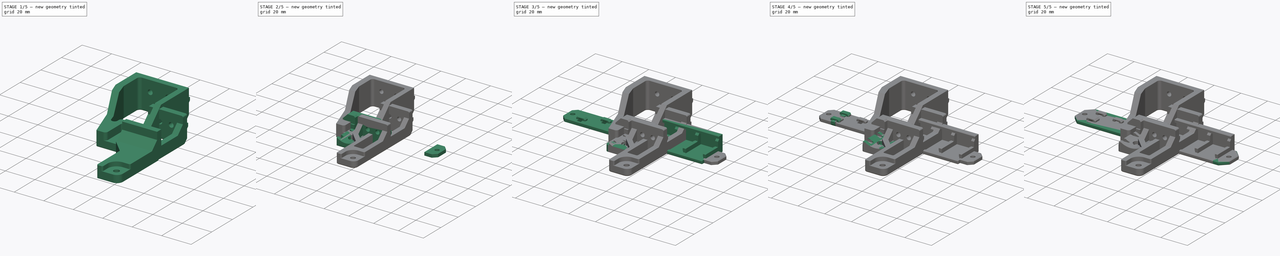
[diagram: build sequence overview — one tinted view per stage of 5, left to right]
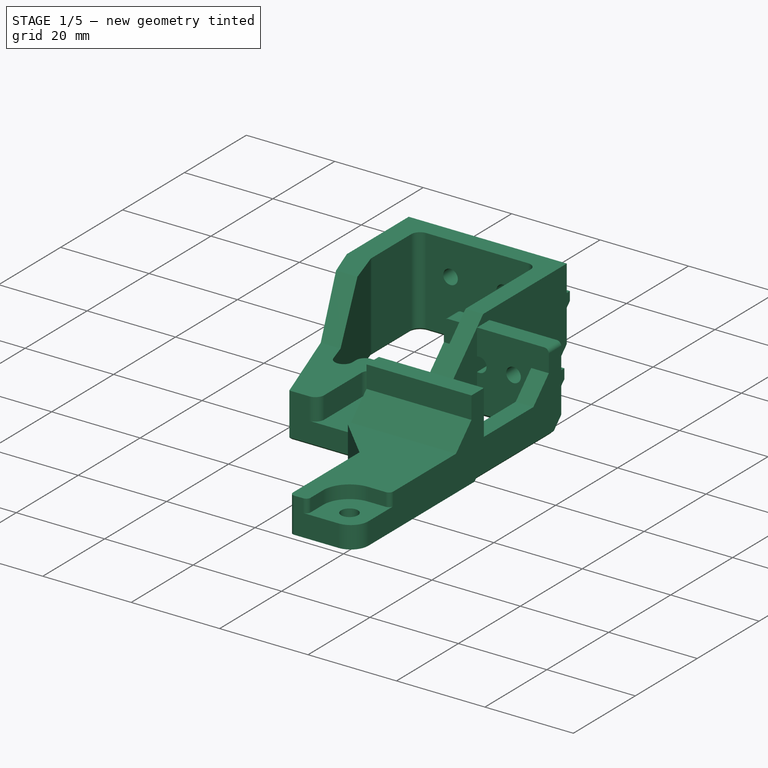
[diagram: stage 1 of 5 — iso view after this stage's code; geometry added in this stage tinted green]
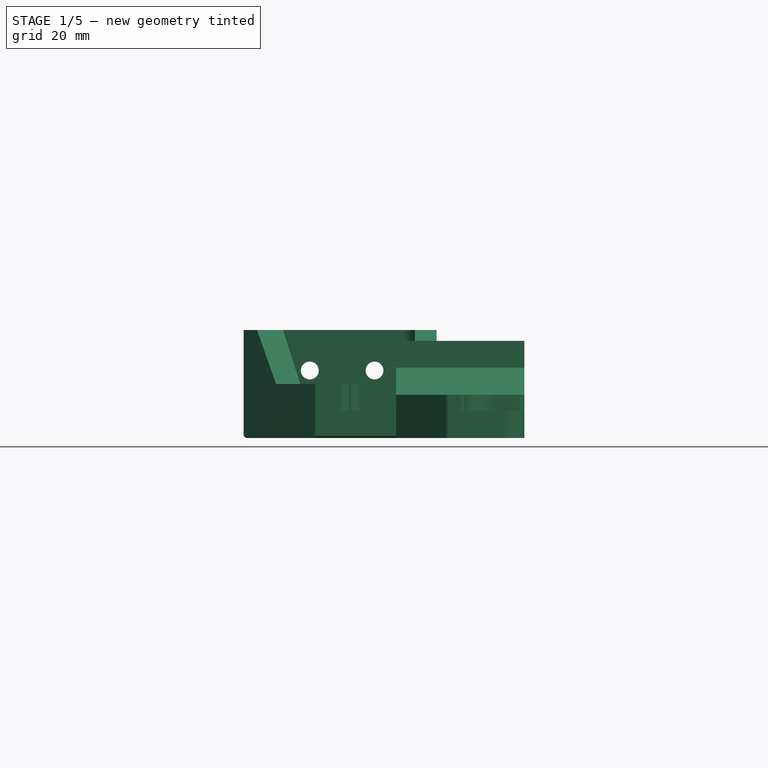
[diagram: stage 1 of 5 — front view after this stage's code; geometry added in this stage tinted green]
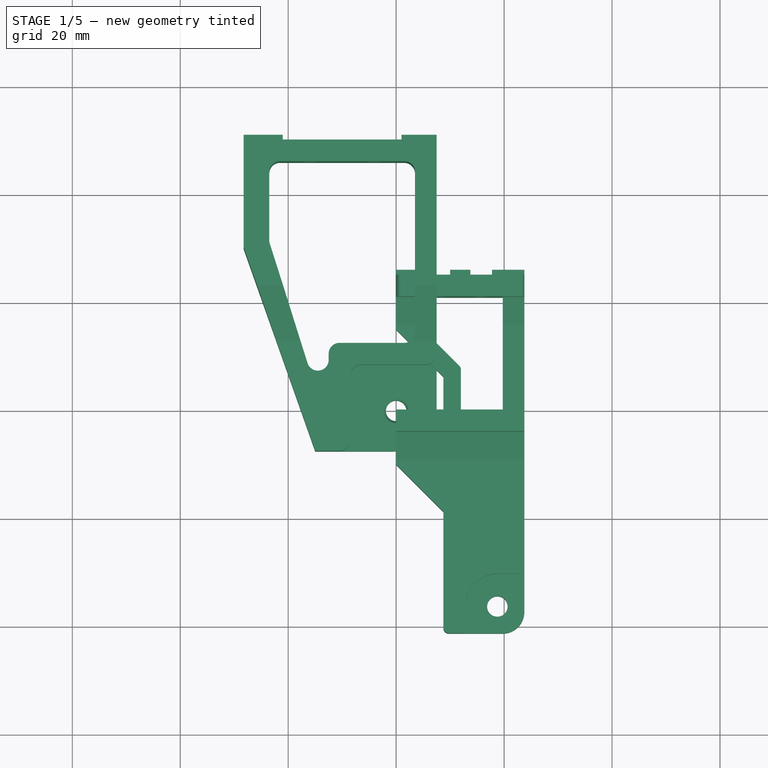
[diagram: stage 1 of 5 — top view after this stage's code; geometry added in this stage tinted green]
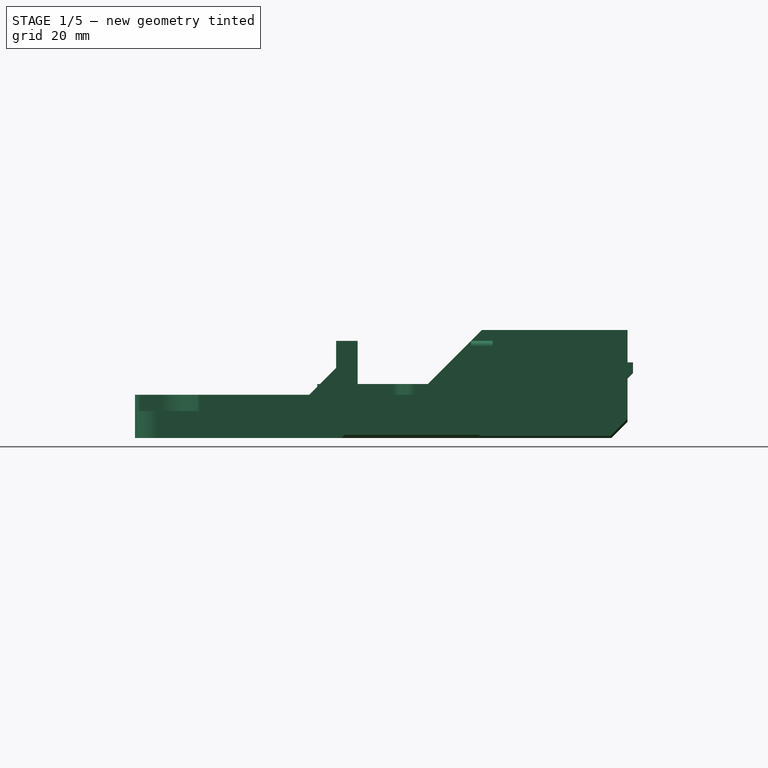
[diagram: stage 1 of 5 — right view after this stage's code; geometry added in this stage tinted green]
FCSTD DOCUMENT  (FreeCAD 0.19R24291 (Git))
Label: ac-bed-connector
License: Other
LicenseURL: GPL3
objects: Part::Feature×29, Sketcher::SketchObject×25, Part::Box×20, Part::Chamfer×19, Part::MultiFuse×18, PartDesign::Pocket×18, Part::Cut×16, Part::Cylinder×13, PartDesign::Chamfer×12, Part::Refine×7, PartDesign::Pad×7, PartDesign::Fillet×7, PartDesign::Body×4, Part::MultiCommon×3, PartDesign::Plane×3, Part::Extrusion×1
note: 246 computed .brp shape members not serialized (recipe doc carries the construction recipe); baked Part::Feature solids carry a one-line shape summary decoded from their .brp

FEATURE [PartDesign::Body] Body001  label="1515-bed-back-cable-clamp"
  Group = -> [Sketch006,Pad001,Sketch007,Pocket005,Sketch008,Pocket006,Chamfer004013007011015006009007001025,Chamfer004013007011015006009007001026,Chamfer004013007011015006009007001027,Sketch009,Pad002]
  Origin = -> Origin001
  Tip = -> Pad002
FEATURE [Sketcher::SketchObject] Sketch010
  FullyConstrained = true
  MapMode = 5
  Support = -> [XY_Plane002]
  sketch-geometry (4):
    g0: LineSegment StartX=0 StartY=0 StartZ=0 EndX=23.75 EndY=0 EndZ=0
    g1: LineSegment StartX=23.75 StartY=0 StartZ=0 EndX=23.75 EndY=-41.25 EndZ=0
    g2: LineSegment StartX=23.75 StartY=-41.25 StartZ=0 EndX=0 EndY=-41.25 EndZ=0
    g3: LineSegment StartX=0 StartY=-41.25 StartZ=0 EndX=0 EndY=0 EndZ=0
  constraints (12):
    c: Coincident(g0,g1)
    c: Coincident(g1,g2)
    c: Coincident(g2,g3)
    c: Coincident(g3,g0)
    c: Horizontal(g0)
    c: Horizontal(g2)
    c: Vertical(g1)
    c: Vertical(g3)
    c: DistanceX(g0,g0) = 23.75
    c: DistanceX(g0,g-1) = 0
    c: DistanceY(g1,g1) = 41.25
    c: DistanceY(g-1,g0) = 0
FEATURE [PartDesign::Pad] Pad003
  Direction = (1,1,1)
  Length = 18
  Length2 = 100
  Profile = -> Sketch010
  Type = 0
FEATURE [PartDesign::Chamfer] Chamfer004013007011015006009007001028
  Angle = 45
  Base = -> Pad003 [Edge3]
  BaseFeature = -> Pad003
  ChamferType = 0
  FlipDirection = false
  Size = 3
  Size2 = 1
  SupportTransform = false
FEATURE [Sketcher::SketchObject] Sketch011
  FullyConstrained = true
  MapMode = 5
  Placement = pos=(0,0,18) rot=(0,0,1;0rad)
  Support = -> [Chamfer004013007011015006009007001028]
  sketch-geometry (1):
    g0: Circle CenterX=18.75 CenterY=-36.25 CenterZ=0 NormalX=0 NormalY=0 NormalZ=1 AngleXU=0 Radius=1.9
  constraints (3):
    c: DistanceY(g0,g-1) = 36.25
    c: DistanceX(g-1,g0) = 18.75
    c: Radius(g0) = 1.9
FEATURE [PartDesign::Pocket] Pocket007
  BaseFeature = -> Chamfer004013007011015006009007001028
  Length = 5
  Length2 = 100
  Profile = -> Sketch011
  Type = 1
FEATURE [Sketcher::SketchObject] Sketch012
  FullyConstrained = true
  MapMode = 5
  Placement = pos=(0,0,18) rot=(0,0,1;0rad)
  Support = -> [Pocket007]
  sketch-geometry (7):
    g0: ArcOfCircle CenterX=18.75 CenterY=-36.25 CenterZ=0 NormalX=0 NormalY=0 NormalZ=1 AngleXU=0 Radius=6 StartAngle=1.5708 EndAngle=3.14159
    g1: LineSegment StartX=12.75 StartY=-36.25 StartZ=0 EndX=18.75 EndY=-36.25 EndZ=0
    g2: LineSegment StartX=18.75 StartY=-30.25 StartZ=0 EndX=18.75 EndY=-36.25 EndZ=0
    g3: LineSegment StartX=18.75 StartY=-30.25 StartZ=0 EndX=23.75 EndY=-30.25 EndZ=0
    g4: LineSegment StartX=23.75 StartY=-30.25 StartZ=0 EndX=23.75 EndY=-41.25 EndZ=0
    g5: LineSegment StartX=23.75 StartY=-41.25 StartZ=0 EndX=12.75 EndY=-41.25 EndZ=0
    g6: LineSegment StartX=12.75 StartY=-41.25 StartZ=0 EndX=12.75 EndY=-36.25 EndZ=0
  constraints (19):
    c: Coincident(g1,g0)
    c: Coincident(g1,g0)
    c: Horizontal(g1)
    c: Coincident(g2,g0)
    c: Coincident(g2,g0)
    c: Vertical(g2)
    c: DistanceX(g-1,g0) = 18.75
    c: DistanceY(g0,g-1) = 36.25
    c: Radius(g0) = 6
    c: Tangent(g0,g3) = 1.5708
    c: Coincident(g3,g4)
    c: Vertical(g4)
    c: Coincident(g4,g5)
    c: Horizontal(g5)
    c: Coincident(g5,g6)
    c: Coincident(g6,g0)
    c: Vertical(g6)
    c: DistanceX(g3,g3) = 5
    c: DistanceY(g6,g6) = 5
FEATURE [PartDesign::Pocket] Pocket008
  BaseFeature = -> Pocket007
  Length = 13
  Length2 = 100
  Profile = -> Sketch012
  Type = 0
FEATURE [PartDesign::Fillet] Fillet
  Base = -> Pocket008 [Edge17]
  BaseFeature = -> Pocket008
  Radius = 4
  SupportTransform = false
FEATURE [Sketcher::SketchObject] Sketch013
  FullyConstrained = true
  MapMode = 5
  Placement = pos=(0,0,18) rot=(0,0,1;0rad)
  Support = -> [Fillet]
  sketch-geometry (4):
    g0: LineSegment StartX=0 StartY=-10 StartZ=0 EndX=0 EndY=-41.25 EndZ=0
    g1: LineSegment StartX=0 StartY=-41.25 StartZ=0 EndX=8.75 EndY=-41.25 EndZ=0
    g2: LineSegment StartX=8.75 StartY=-41.25 StartZ=0 EndX=8.75 EndY=-18.75 EndZ=0
    g3: LineSegment StartX=8.75 StartY=-18.75 StartZ=0 EndX=0 EndY=-10 EndZ=0
  constraints (12):
    c: Vertical(g0)
    c: Coincident(g0,g1)
    c: Horizontal(g1)
    c: Coincident(g1,g2)
    c: Vertical(g2)
    c: Coincident(g2,g3)
    c: Coincident(g3,g0)
    c: DistanceX(g0,g-1) = 0
    c: DistanceY(g0,g-1) = 10
    c: Angle(g0,g3) = 0.785398
    c: DistanceX(g1,g1) = 8.75
    c: DistanceY(g0,g0) = 31.25
FEATURE [PartDesign::Pocket] Pocket009
  BaseFeature = -> Fillet
  Length = 5
  Length2 = 100
  Profile = -> Sketch013
  Type = 1
FEATURE [PartDesign::Fillet] Fillet001
  Base = -> Pocket009 [Edge36,Edge37,Edge6]
  BaseFeature = -> Pocket009
  Radius = 1
  SupportTransform = false
FEATURE [Sketcher::SketchObject] Sketch014
  FullyConstrained = false
  MapMode = 5
  Placement = pos=(23.75,0,0) rot=(0.57735,0.57735,0.57735;2.0944rad)
  Support = -> [Fillet001]
  sketch-geometry (5):
    g0: LineSegment StartX=-42 StartY=8 StartZ=0 EndX=-42 EndY=19 EndZ=0
    g1: LineSegment StartX=-42 StartY=19 StartZ=0 EndX=-4 EndY=19 EndZ=0
    g2: LineSegment StartX=-42 StartY=8 StartZ=0 EndX=-9 EndY=8 EndZ=0
    g3: LineSegment StartX=-9 StartY=8 StartZ=0 EndX=-4 EndY=13 EndZ=0
    g4: LineSegment StartX=-4 StartY=13 StartZ=0 EndX=-4 EndY=19 EndZ=0
  constraints (8):
    c: Vertical(g0)
    c: Coincident(g0,g1)
    c: Horizontal(g1)
    c: Coincident(g0,g2)
    c: Horizontal(g2)
    c: Coincident(g2,g3)
    c: Coincident(g3,g4)
    c: Vertical(g4)
FEATURE [PartDesign::Pocket] Pocket010
  BaseFeature = -> Fillet001
  Length = 5
  Length2 = 100
  Profile = -> Sketch014
  Type = 1
FEATURE [PartDesign::Body] Body002  label="1515-92mm-fan-mount"
  Group = -> [Sketch010,Pad003,Chamfer004013007011015006009007001028,Sketch011,Pocket007,Sketch012,Pocket008,Fillet,Sketch013,Pocket009,Fillet001,Sketch014,Pocket010,Fillet002,Sketch015,Pocket011,Fillet003,Sketch016,Pocket012,Sketch017,Pad004,Chamfer004013007011015006009007001029,Chamfer004013007011015006009007001030,Chamfer004013007011015006009007001031]
  Origin = -> Origin002
  Tip = -> Chamfer004013007011015006009007001031
FEATURE [Part::Feature] Body002001  label="1515-92mm-fan-mount001"
  shape: bbox 23.75 x 42.25 x 18 mm, 72 faces (baked)
FEATURE [Part::Box] Box018  label="Cube018"
  AttacherType = Attacher::AttachEngine3D
  Height = 10
  Length = 26
  Placement = pos=(0,-44,0) rot=(0,0,1;0rad)
  Width = 20
FEATURE [Part::Box] Box019  label="Cube019"
  AttacherType = Attacher::AttachEngine3D
  Height = 10
  Length = 26
  Placement = pos=(0,-44,0) rot=(0,0,1;0rad)
  Width = 20
FEATURE [Part::Feature] Body002002  label="1515-92mm-fan-mount002"
  shape: bbox 23.75 x 42.25 x 18 mm, 72 faces (baked)
FEATURE [Part::Feature] Body002002_cs
  shape: bbox 15 x 4e-07 x 8 mm, 0 faces, 0 solids (baked)
FEATURE [Part::MultiCommon] Common002010
  Shapes = -> [Body002002,Box019]
FEATURE [Part::Cut] Cut001001002
  Base = -> Body002001
  Placement = pos=(0,25,0) rot=(0,0,1;0rad)
  Tool = -> Box018
FEATURE [Part::Extrusion] Extrude
  Base = -> Body002002_cs
  Dir = (0,1,0)
  DirMode = 2
  FaceMakerClass = Part::FaceMakerBullseye
  LengthFwd = 27
  LengthRev = 0
  Placement = pos=(0,-5,0) rot=(0,0,1;0rad)
  Solid = true
  Symmetric = false
FEATURE [Part::MultiFuse] Fusion004005013  label="1515-92mm-fan-mount-250"
  Shapes = -> [Extrude,Cut001001002,Common002010]
FEATURE [Sketcher::SketchObject] Sketch018
  FullyConstrained = true
  MapMode = 5
  Support = -> [XY_Plane003]
  sketch-geometry (5):
    g0: LineSegment StartX=-28.25 StartY=50 StartZ=0 EndX=7.5 EndY=50 EndZ=0
    g1: LineSegment StartX=7.5 StartY=50 StartZ=0 EndX=7.5 EndY=-7.5 EndZ=0
    g2: LineSegment StartX=7.5 StartY=-7.5 StartZ=0 EndX=-15 EndY=-7.5 EndZ=0
    g3: LineSegment StartX=-28.25 StartY=50 StartZ=0 EndX=-28.25 EndY=30 EndZ=0
    g4: LineSegment StartX=-28.25 StartY=30 StartZ=0 EndX=-15 EndY=-7.5 EndZ=0
  constraints (15):
    c: Horizontal(g0)
    c: Coincident(g0,g1)
    c: Vertical(g1)
    c: Coincident(g1,g2)
    c: Horizontal(g2)
    c: Coincident(g0,g3)
    c: Vertical(g3)
    c: DistanceX(g0,g0) = 35.75
    c: DistanceY(g1,g1) = 57.5
    c: DistanceX(g2,g2) = 22.5
    c: DistanceX(g-1,g0) = 7.5
    c: DistanceY(g1,g-1) = 7.5
    c: DistanceY(g3,g3) = 20
    c: Coincident(g4,g3)
    c: Coincident(g4,g2)
FEATURE [PartDesign::Pad] Pad005
  Direction = (1,1,1)
  Length = 20
  Length2 = 100
  Profile = -> Sketch018
  Type = 0
FEATURE [Sketcher::SketchObject] Sketch019
  FullyConstrained = true
  MapMode = 5
  Placement = pos=(0,0,20) rot=(0,0,1;0rad)
  Support = -> [Pad005]
  sketch-geometry (4):
    g0: LineSegment StartX=-8.5 StartY=8.5 StartZ=0 EndX=8.5 EndY=8.5 EndZ=0
    g1: LineSegment StartX=8.5 StartY=8.5 StartZ=0 EndX=8.5 EndY=-8.5 EndZ=0
    g2: LineSegment StartX=8.5 StartY=-8.5 StartZ=0 EndX=-8.5 EndY=-8.5 EndZ=0
    g3: LineSegment StartX=-8.5 StartY=-8.5 StartZ=0 EndX=-8.5 EndY=8.5 EndZ=0
  constraints (12):
    c: Coincident(g0,g1)
    c: Coincident(g1,g2)
    c: Coincident(g2,g3)
    c: Coincident(g3,g0)
    c: Horizontal(g0)
    c: Horizontal(g2)
    c: Vertical(g1)
    c: Vertical(g3)
    c: DistanceX(g0,g-1) = 8.5
    c: DistanceY(g-1,g0) = 8.5
    c: DistanceY(g3,g3) = 17
    c: DistanceX(g0,g0) = 17
FEATURE [PartDesign::Pocket] Pocket013
  BaseFeature = -> Pad005
  Length = 15
  Length2 = 100
  Profile = -> Sketch019
  Type = 0
FEATURE [PartDesign::Fillet] Fillet004
  Base = -> Pocket013 [Edge20,Edge24,Edge11]
  BaseFeature = -> Pocket013
  Radius = 2
  SupportTransform = false
FEATURE [Sketcher::SketchObject] Sketch020
  FullyConstrained = true
  MapMode = 5
  Placement = pos=(0,0,5) rot=(0,0,1;0rad)
  Support = -> [Fillet004]
  sketch-geometry (1):
    g0: Circle CenterX=0 CenterY=0 CenterZ=0 NormalX=0 NormalY=0 NormalZ=1 AngleXU=0 Radius=1.9
  constraints (2):
    c: Coincident(g0,g-1)
    c: Radius(g0) = 1.9
FEATURE [PartDesign::Pocket] Pocket014
  BaseFeature = -> Fillet004
  Length = 5
  Length2 = 100
  Profile = -> Sketch020
  Type = 0
FEATURE [PartDesign::Fillet] Fillet005
  Base = -> Pocket014 [Edge7]
  BaseFeature = -> Pocket014
  Radius = 8
  SupportTransform = false
FEATURE [PartDesign::Plane] DatumPlane
  AttachmentOffset = pos=(0,0,20) rot=(0,0,1;0rad)
  Length = 65.9732
  MapMode = 5
  Placement = pos=(0,0,20) rot=(0,0,1;0rad)
  ResizeMode = 0
  Support = -> [XY_Plane003]
  Width = 88.7232
FEATURE [Sketcher::SketchObject] Sketch021
  FullyConstrained = true
  MapMode = 5
  Placement = pos=(0,0,20) rot=(0,0,1;0rad)
  Support = -> [DatumPlane]
  sketch-geometry (6):
    g0: LineSegment StartX=-23.5 StartY=31 StartZ=0 EndX=-23.5 EndY=46 EndZ=0
    g1: LineSegment StartX=-23.5 StartY=46 StartZ=0 EndX=3.5 EndY=46 EndZ=0
    g2: LineSegment StartX=3.5 StartY=46 StartZ=0 EndX=3.5 EndY=12.5 EndZ=0
    g3: LineSegment StartX=3.5 StartY=12.5 StartZ=0 EndX=-12.5 EndY=12.5 EndZ=0
    g4: LineSegment StartX=-12.5 StartY=12.5 StartZ=0 EndX=-12.5 EndY=-3.5 EndZ=0
    g5: LineSegment StartX=-12.5 StartY=-3.5 StartZ=0 EndX=-23.5 EndY=31 EndZ=0
  constraints (18):
    c: Vertical(g0)
    c: Coincident(g0,g1)
    c: Horizontal(g1)
    c: Coincident(g1,g2)
    c: Vertical(g2)
    c: Coincident(g2,g3)
    c: Horizontal(g3)
    c: Coincident(g3,g4)
    c: Vertical(g4)
    c: Coincident(g5,g0)
    c: DistanceX(g-1,g2) = 3.5
    c: DistanceX(g4,g-1) = 12.5
    c: DistanceY(g-1,g2) = 12.5
    c: DistanceY(g4,g-1) = 3.5
    c: DistanceX(g1,g1) = 27
    c: DistanceY(g0,g0) = 15
    c: DistanceY(g2,g2) = 33.5
    c: Coincident(g5,g4)
FEATURE [PartDesign::Pocket] Pocket015
  BaseFeature = -> Fillet005
  Length = 5
  Length2 = 100
  Profile = -> Sketch021
  Type = 1
FEATURE [PartDesign::Fillet] Fillet006
  Base = -> Pocket015 [Edge53,Edge54,Edge55,Edge56,Edge51,Edge52]
  BaseFeature = -> Pocket015
  Radius = 2
  SupportTransform = false
FEATURE [PartDesign::Plane] DatumPlane001
  AttachmentOffset = pos=(0,0,8) rot=(0,0,1;0rad)
  Length = 88.3288
  MapMode = 5
  Placement = pos=(8,-1.8e-15,1.8e-15) rot=(0.57735,0.57735,0.57735;2.0944rad)
  ResizeMode = 0
  Support = -> [YZ_Plane003]
  Width = 62.3288
FEATURE [Sketcher::SketchObject] Sketch022
  FullyConstrained = false
  MapMode = 5
  Placement = pos=(8,-1.8e-15,1.8e-15) rot=(0.57735,0.57735,0.57735;2.0944rad)
  Support = -> [DatumPlane001]
  sketch-geometry (4):
    g0: LineSegment StartX=-8 StartY=10 StartZ=0 EndX=13 EndY=10 EndZ=0
    g1: LineSegment StartX=13 StartY=10 StartZ=0 EndX=23 EndY=20 EndZ=0
    g2: LineSegment StartX=23 StartY=20 StartZ=0 EndX=-8 EndY=20 EndZ=0
    g3: LineSegment StartX=-8 StartY=20 StartZ=0 EndX=-8 EndY=10 EndZ=0
  constraints (7):
    c: Horizontal(g0)
    c: Coincident(g0,g1)
    c: Coincident(g1,g2)
    c: Horizontal(g2)
    c: Coincident(g2,g3)
    c: Coincident(g3,g0)
    c: Vertical(g3)
FEATURE [PartDesign::Pocket] Pocket016
  BaseFeature = -> Fillet006
  Length = 27
  Length2 = 100
  Profile = -> Sketch022
  Type = 1
FEATURE [PartDesign::Chamfer] Chamfer004013007011015006009007001032
  Angle = 45
  Base = -> Pocket016 [Edge15]
  BaseFeature = -> Pocket016
  ChamferType = 0
  FlipDirection = false
  Size = 3
  Size2 = 1
  SupportTransform = false
FEATURE [PartDesign::Plane] DatumPlane002
  AttachmentOffset = pos=(0,0,-50) rot=(0,0,1;0rad)
  Length = 63.5699
  MapMode = 5
  Placement = pos=(0,50,1.11e-14) rot=(1,0,0;1.5708rad)
  ResizeMode = 0
  Support = -> [XZ_Plane003]
  Width = 60.3199
FEATURE [Sketcher::SketchObject] Sketch023
  FullyConstrained = true
  MapMode = 5
  Placement = pos=(0,50,1.11e-14) rot=(1,0,0;1.5708rad)
  Support = -> [DatumPlane002]
  sketch-geometry (2):
    g0: Circle CenterX=-16 CenterY=12.5 CenterZ=0 NormalX=0 NormalY=0 NormalZ=1 AngleXU=0 Radius=1.65
    g1: Circle CenterX=-4 CenterY=12.5 CenterZ=0 NormalX=0 NormalY=0 NormalZ=1 AngleXU=0 Radius=1.65
  constraints (6):
    c: DistanceY(g-1,g1) = 12.5
    c: DistanceY(g-1,g0) = 12.5
    c: Radius(g0) = 1.65
    c: Radius(g1) = 1.65
    c: DistanceX(g1,g-1) = 4
    c: DistanceX(g0,g1) = 12
FEATURE [PartDesign::Pocket] Pocket017
  BaseFeature = -> Chamfer004013007011015006009007001032
  Length = 5
  Length2 = 100
  Profile = -> Sketch023
  Reversed = true
  Type = 0
FEATURE [Sketcher::SketchObject] Sketch024
  FullyConstrained = true
  MapMode = 5
  Placement = pos=(0,50,1.11e-14) rot=(1,0,0;1.5708rad)
  Support = -> [DatumPlane002]
  sketch-geometry (8):
    g0: LineSegment StartX=7.5 StartY=14 StartZ=0 EndX=1 EndY=14 EndZ=0
    g1: LineSegment StartX=1 StartY=14 StartZ=0 EndX=1 EndY=11 EndZ=0
    g2: LineSegment StartX=1 StartY=11 StartZ=0 EndX=7.5 EndY=11 EndZ=0
    g3: LineSegment StartX=7.5 StartY=11 StartZ=0 EndX=7.5 EndY=14 EndZ=0
    g4: LineSegment StartX=-28.25 StartY=14 StartZ=0 EndX=-21 EndY=14 EndZ=0
    g5: LineSegment StartX=-21 StartY=14 StartZ=0 EndX=-21 EndY=11 EndZ=0
    g6: LineSegment StartX=-21 StartY=11 StartZ=0 EndX=-28.25 EndY=11 EndZ=0
    g7: LineSegment StartX=-28.25 StartY=11 StartZ=0 EndX=-28.25 EndY=14 EndZ=0
  constraints (24):
    c: Coincident(g0,g1)
    c: Coincident(g1,g2)
    c: Coincident(g2,g3)
    c: Coincident(g3,g0)
    c: Horizontal(g0)
    c: Horizontal(g2)
    c: Vertical(g1)
    c: Vertical(g3)
    c: DistanceY(g3,g3) = 3
    c: DistanceY(g-1,g2) = 11
    c: DistanceX(g-1,g2) = 7.5
    c: DistanceX(g0,g0) = 6.5
    c: Coincident(g4,g5)
    c: Coincident(g5,g6)
    c: Coincident(g6,g7)
    c: Coincident(g7,g4)
    c: Horizontal(g4)
    c: Horizontal(g6)
    c: Vertical(g5)
    c: Vertical(g7)
    c: DistanceX(g4,g4) = 7.25
    c: DistanceY(g5,g5) = 3
    c: DistanceY(g-1,g5) = 11
    c: DistanceX(g4,g0) = 22
FEATURE [PartDesign::Pad] Pad006
  BaseFeature = -> Pocket017
  Direction = (1,1,1)
  Length = 1
  Length2 = 100
  Profile = -> Sketch024
  Reversed = true
  Type = 0
FEATURE [PartDesign::Chamfer] Chamfer004013007011015006009007001033
  Angle = 45
  Base = -> Pad006 [Edge114,Edge122]
  BaseFeature = -> Pad006
  ChamferType = 0
  FlipDirection = false
  Size = 0.99
  Size2 = 1
  SupportTransform = false
FEATURE [PartDesign::Chamfer] Chamfer004013007011015006009007001034
  Angle = 45
  Base = -> Chamfer004013007011015006009007001033 [Edge15,Edge49,Edge51,Edge52,Edge50,Edge36,Edge13,Edge63,Edge62,Edge64,Edge60,Edge58,Edge56,Edge54,Edge53,Edge55,Edge57,Edge61,Edge59,Edge65,Edge92]
  BaseFeature = -> Chamfer004013007011015006009007001033
  ChamferType = 0
  FlipDirection = false
  Size = 0.4
  Size2 = 1
  SupportTransform = false
FEATURE [PartDesign::Body] Body002003  label="1515-120mm-fan-mount-250-machine"
  Group = -> [Sketch018,Pad005,Sketch019,Pocket013,Fillet004,Sketch020,Pocket014,Fillet005,DatumPlane,Sketch021,Pocket015,Fillet006,DatumPlane001,Sketch022,Pocket016,Chamfer004013007011015006009007001032,DatumPlane002,Sketch023,Pocket017,Sketch024,Pad006,Chamfer004013007011015006009007001033,Chamfer004013007011015006009007001034]
  Origin = -> Origin003
  Tip = -> Chamfer004013007011015006009007001034
FEATURE [Part::Feature] Body002003001  label="1515-120mm-fan-mount-250-machine001"
  shape: bbox 35.75 x 58.5 x 20 mm, 66 faces (baked)
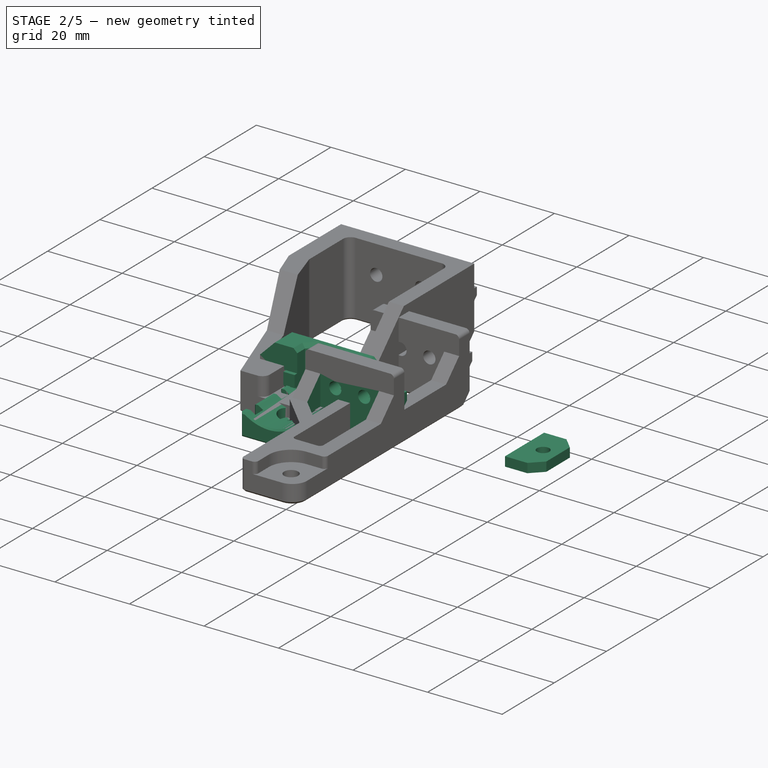
[diagram: stage 2 of 5 — iso view after this stage's code; geometry added in this stage tinted green]
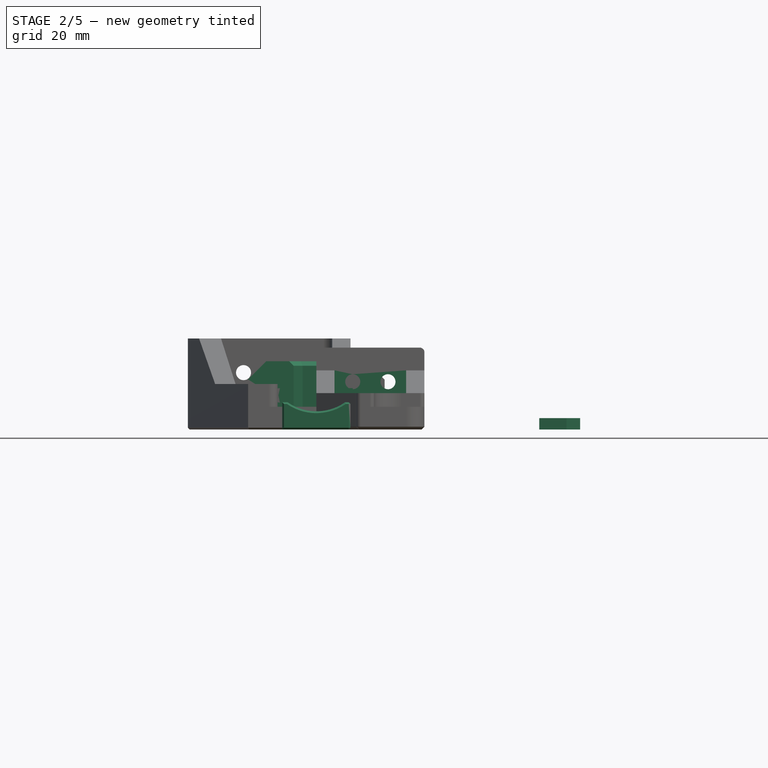
[diagram: stage 2 of 5 — front view after this stage's code; geometry added in this stage tinted green]
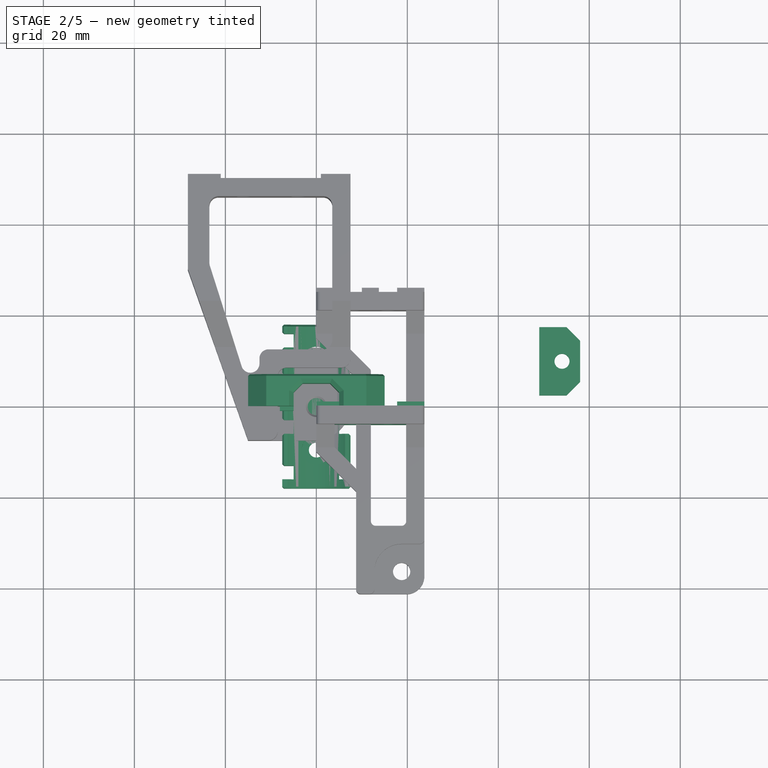
[diagram: stage 2 of 5 — top view after this stage's code; geometry added in this stage tinted green]
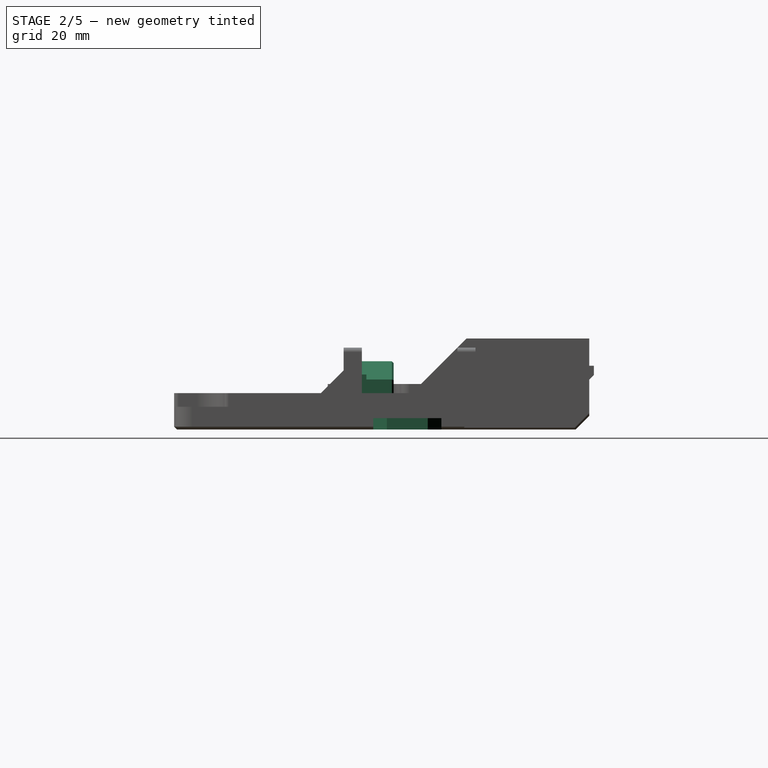
[diagram: stage 2 of 5 — right view after this stage's code; geometry added in this stage tinted green]
FEATURE [Part::Cylinder] Cylinder009
  Angle = 360
  AttacherType = Attacher::AttachEngine3D
  Height = 10
  Placement = pos=(54,10,0) rot=(0,0,1;0rad)
  Radius = 1.65
FEATURE [Part::Refine] Common002007  label="ziptie-slot-low009"
  Placement = pos=(-1,10,0) rot=(0,0,1;0rad)
  Source = -> Common002005
FEATURE [Part::Box] Box017  label="Cube017"
  AttacherType = Attacher::AttachEngine3D
  Height = 2.5
  Length = 9
  Placement = pos=(49,2.5,0) rot=(0,0,1;0rad)
  Width = 15
FEATURE [Part::Cut] Cut014
  Base = -> Box017
  Tool = -> Cylinder009
FEATURE [Part::Chamfer] Chamfer004013007011015006009007001020
  Base = -> Cut014
  Edges = 2 edges r=3: [Edge6,Edge12]
FEATURE [Part::Feature] Part__Mirroring002  label="1515-connector-mounter (Mirror #1)001"
  shape: bbox 116 x 22.25 x 12.2 mm, 276 faces (baked)
FEATURE [Sketcher::SketchObject] Sketch
  FullyConstrained = true
  MapMode = 5
  Support = -> [XY_Plane]
  sketch-geometry (4):
    g0: LineSegment StartX=-7.5 StartY=18 StartZ=0 EndX=7.5 EndY=18 EndZ=0
    g1: LineSegment StartX=7.5 StartY=18 StartZ=0 EndX=7.5 EndY=-18 EndZ=0
    g2: LineSegment StartX=7.5 StartY=-18 StartZ=0 EndX=-7.5 EndY=-18 EndZ=0
    g3: LineSegment StartX=-7.5 StartY=-18 StartZ=0 EndX=-7.5 EndY=18 EndZ=0
  constraints (12):
    c: Coincident(g0,g1)
    c: Coincident(g1,g2)
    c: Coincident(g2,g3)
    c: Coincident(g3,g0)
    c: Horizontal(g0)
    c: Horizontal(g2)
    c: Vertical(g1)
    c: Vertical(g3)
    c: DistanceY(g1,g1) = 36
    c: DistanceY(g-1,g0) = 18
    c: DistanceX(g0,g0) = 15
    c: DistanceX(g0,g-1) = 7.5
FEATURE [PartDesign::Pad] Pad
  Direction = (1,1,1)
  Length = 6
  Length2 = 100
  Profile = -> Sketch
  Type = 0
FEATURE [Sketcher::SketchObject] Sketch001
  FullyConstrained = true
  MapMode = 5
  Placement = pos=(0,0,0) rot=(1,0,0;3.14159rad)
  Support = -> [Pad]
  sketch-geometry (16):
    g0: LineSegment StartX=-10 StartY=16 StartZ=0 EndX=10 EndY=16 EndZ=0
    g1: LineSegment StartX=10 StartY=16 StartZ=0 EndX=10 EndY=13 EndZ=0
    g2: LineSegment StartX=10 StartY=13 StartZ=0 EndX=-10 EndY=13 EndZ=0
    g3: LineSegment StartX=-10 StartY=13 StartZ=0 EndX=-10 EndY=16 EndZ=0
    g4: LineSegment StartX=-10 StartY=6 StartZ=0 EndX=10 EndY=6 EndZ=0
    g5: LineSegment StartX=10 StartY=6 StartZ=0 EndX=10 EndY=3 EndZ=0
    g6: LineSegment StartX=10 StartY=3 StartZ=0 EndX=-10 EndY=3 EndZ=0
    g7: LineSegment StartX=-10 StartY=3 StartZ=0 EndX=-10 EndY=6 EndZ=0
    g8: LineSegment StartX=-10 StartY=-4 StartZ=0 EndX=10 EndY=-4 EndZ=0
    g9: LineSegment StartX=10 StartY=-4 StartZ=0 EndX=10 EndY=-7 EndZ=0
    g10: LineSegment StartX=10 StartY=-7 StartZ=0 EndX=-10 EndY=-7 EndZ=0
    g11: LineSegment StartX=-10 StartY=-7 StartZ=0 EndX=-10 EndY=-4 EndZ=0
    g12: LineSegment StartX=-10 StartY=-13 StartZ=0 EndX=10 EndY=-13 EndZ=0
    g13: LineSegment StartX=10 StartY=-13 StartZ=0 EndX=10 EndY=-16 EndZ=0
    g14: LineSegment StartX=10 StartY=-16 StartZ=0 EndX=-10 EndY=-16 EndZ=0
    g15: LineSegment StartX=-10 StartY=-16 StartZ=0 EndX=-10 EndY=-13 EndZ=0
  constraints (48):
    c: Coincident(g0,g1)
    c: Coincident(g1,g2)
    c: Coincident(g2,g3)
    c: Coincident(g3,g0)
    c: Horizontal(g0)
    c: Horizontal(g2)
    c: Vertical(g1)
    c: Vertical(g3)
    c: Coincident(g4,g5)
    c: Coincident(g5,g6)
    c: Coincident(g6,g7)
    c: Coincident(g7,g4)
    c: Horizontal(g4)
    c: Horizontal(g6)
    c: Vertical(g5)
    c: Vertical(g7)
    c: Coincident(g8,g9)
    c: Coincident(g9,g10)
    c: Coincident(g10,g11)
    c: Coincident(g11,g8)
    c: Horizontal(g8)
    c: Horizontal(g10)
    c: Vertical(g9)
    c: Vertical(g11)
    c: Coincident(g12,g13)
    c: Coincident(g13,g14)
    c: Coincident(g14,g15)
    c: Coincident(g15,g12)
    c: Horizontal(g12)
    c: Horizontal(g14)
    c: Vertical(g13)
    c: Vertical(g15)
    c: DistanceY(g3,g3) = 3
    c: DistanceY(g4,g2) = 7
    c: DistanceY(g7,g7) = 3
    c: DistanceY(g8,g6) = 7
    c: DistanceY(g11,g11) = 3
    c: DistanceY(g12,g10) = 6
    c: DistanceY(g15,g15) = 3
    c: DistanceX(g0,g0) = 20
    c: DistanceX(g4,g4) = 20
    c: DistanceX(g8,g8) = 20
    c: DistanceX(g12,g12) = 20
    c: DistanceX(g10,g12) = 0
    c: DistanceX(g6,g8) = 0
    c: DistanceX(g2,g4) = 0
    c: DistanceX(g-1,g5) = 10
    c: DistanceY(g-1,g5) = 3
FEATURE [PartDesign::Pocket] Pocket
  BaseFeature = -> Pad
  Length = 2
  Length2 = 100
  Profile = -> Sketch001
  Type = 0
FEATURE [Sketcher::SketchObject] Sketch002
  FullyConstrained = false
  MapMode = 5
  Placement = pos=(0,0,0) rot=(1,0,0;3.14159rad)
  Support = -> [Pocket]
  sketch-geometry (32):
    g0: LineSegment StartX=-8 StartY=16 StartZ=0 EndX=-5 EndY=16 EndZ=0
    g1: LineSegment StartX=-5 StartY=16 StartZ=0 EndX=-5 EndY=13 EndZ=0
    g2: LineSegment StartX=-5 StartY=13 StartZ=0 EndX=-8 EndY=13 EndZ=0
    g3: LineSegment StartX=-8 StartY=13 StartZ=0 EndX=-8 EndY=16 EndZ=0
    g4: LineSegment StartX=8 StartY=16 StartZ=0 EndX=5 EndY=16 EndZ=0
    g5: LineSegment StartX=5 StartY=16 StartZ=0 EndX=5 EndY=13 EndZ=0
    g6: LineSegment StartX=5 StartY=13 StartZ=0 EndX=8 EndY=13 EndZ=0
    g7: LineSegment StartX=8 StartY=13 StartZ=0 EndX=8 EndY=16 EndZ=0
    g8: LineSegment StartX=-8 StartY=6 StartZ=0 EndX=-5 EndY=6 EndZ=0
    g9: LineSegment StartX=-5 StartY=6 StartZ=0 EndX=-5 EndY=3 EndZ=0
    g10: LineSegment StartX=-5 StartY=3 StartZ=0 EndX=-8 EndY=3 EndZ=0
    g11: LineSegment StartX=-8 StartY=3 StartZ=0 EndX=-8 EndY=6 EndZ=0
    g12: LineSegment StartX=8 StartY=6 StartZ=0 EndX=5 EndY=6 EndZ=0
    g13: LineSegment StartX=5 StartY=6 StartZ=0 EndX=5 EndY=3 EndZ=0
    g14: LineSegment StartX=5 StartY=3 StartZ=0 EndX=8 EndY=3 EndZ=0
    g15: LineSegment StartX=8 StartY=3 StartZ=0 EndX=8 EndY=6 EndZ=0
    g16: LineSegment StartX=-8 StartY=-4 StartZ=0 EndX=-5 EndY=-4 EndZ=0
    g17: LineSegment StartX=-5 StartY=-4 StartZ=0 EndX=-5 EndY=-7 EndZ=0
    g18: LineSegment StartX=-5 StartY=-7 StartZ=0 EndX=-8 EndY=-7 EndZ=0
    g19: LineSegment StartX=-8 StartY=-7 StartZ=0 EndX=-8 EndY=-4 EndZ=0
    g20: LineSegment StartX=8 StartY=-4 StartZ=0 EndX=5 EndY=-4 EndZ=0
    g21: LineSegment StartX=5 StartY=-4 StartZ=0 EndX=5 EndY=-7 EndZ=0
    g22: LineSegment StartX=5 StartY=-7 StartZ=0 EndX=8 EndY=-7 EndZ=0
    g23: LineSegment StartX=8 StartY=-7 StartZ=0 EndX=8 EndY=-4 EndZ=0
    g24: LineSegment StartX=-8 StartY=-13 StartZ=0 EndX=-5 EndY=-13 EndZ=0
    g25: LineSegment StartX=-5 StartY=-13 StartZ=0 EndX=-5 EndY=-16 EndZ=0
    g26: LineSegment StartX=-5 StartY=-16 StartZ=0 EndX=-8 EndY=-16 EndZ=0
    g27: LineSegment StartX=-8 StartY=-16 StartZ=0 EndX=-8 EndY=-13 EndZ=0
    g28: LineSegment StartX=8 StartY=-13 StartZ=0 EndX=5 EndY=-13 EndZ=0
    g29: LineSegment StartX=5 StartY=-13 StartZ=0 EndX=5 EndY=-16 EndZ=0
    g30: LineSegment StartX=5 StartY=-16 StartZ=0 EndX=8 EndY=-16 EndZ=0
    g31: LineSegment StartX=8 StartY=-16 StartZ=0 EndX=8 EndY=-13 EndZ=0
  constraints (64):
    c: Coincident(g0,g1)
    c: Coincident(g1,g2)
    c: Coincident(g2,g3)
    c: Coincident(g3,g0)
    c: Horizontal(g0)
    c: Horizontal(g2)
    c: Vertical(g1)
    c: Vertical(g3)
    c: Coincident(g4,g5)
    c: Coincident(g5,g6)
    c: Coincident(g6,g7)
    c: Coincident(g7,g4)
    c: Horizontal(g4)
    c: Horizontal(g6)
    c: Vertical(g5)
    c: Vertical(g7)
    c: Coincident(g8,g9)
    c: Coincident(g9,g10)
    c: Coincident(g10,g11)
    c: Coincident(g11,g8)
    c: Horizontal(g8)
    c: Horizontal(g10)
    c: Vertical(g9)
    c: Vertical(g11)
    c: Coincident(g12,g13)
    c: Coincident(g13,g14)
    c: Coincident(g14,g15)
    c: Coincident(g15,g12)
    c: Horizontal(g12)
    c: Horizontal(g14)
    c: Vertical(g13)
    c: Vertical(g15)
    c: Coincident(g16,g17)
    c: Coincident(g17,g18)
    c: Coincident(g18,g19)
    c: Coincident(g19,g16)
    c: Horizontal(g16)
    c: Horizontal(g18)
    c: Vertical(g17)
    c: Vertical(g19)
    c: Coincident(g20,g21)
    c: Coincident(g21,g22)
    c: Coincident(g22,g23)
    c: Coincident(g23,g20)
    c: Horizontal(g20)
    c: Horizontal(g22)
    c: Vertical(g21)
    c: Vertical(g23)
    c: Coincident(g24,g25)
    c: Coincident(g25,g26)
    c: Coincident(g26,g27)
    c: Coincident(g27,g24)
    c: Horizontal(g24)
    c: Horizontal(g26)
    c: Vertical(g25)
    c: Vertical(g27)
    c: Coincident(g28,g29)
    c: Coincident(g29,g30)
    c: Coincident(g30,g31)
    c: Coincident(g31,g28)
    c: Horizontal(g28)
    c: Horizontal(g30)
    c: Vertical(g29)
    c: Vertical(g31)
FEATURE [PartDesign::Pocket] Pocket001
  BaseFeature = -> Pocket
  Length = 7
  Length2 = 100
  Profile = -> Sketch002
  Type = 1
FEATURE [Sketcher::SketchObject] Sketch003
  FullyConstrained = true
  MapMode = 5
  Placement = pos=(0,-18,0) rot=(1,0,0;1.5708rad)
  Support = -> [Pocket001]
  sketch-geometry (1):
    g0: Circle CenterX=0 CenterY=15 CenterZ=0 NormalX=0 NormalY=0 NormalZ=1 AngleXU=0 Radius=11
  constraints (3):
    c: DistanceX(g0,g-1) = 0
    c: DistanceY(g-1,g0) = 15
    c: Radius(g0) = 11
FEATURE [PartDesign::Pocket] Pocket002
  BaseFeature = -> Pocket001
  Length = 5
  Length2 = 100
  Profile = -> Sketch003
  Type = 1
FEATURE [Sketcher::SketchObject] Sketch004
  FullyConstrained = true
  MapMode = 5
  Placement = pos=(0,0,0) rot=(1,0,0;3.14159rad)
  Support = -> [Pocket002]
  sketch-geometry (2):
    g0: Circle CenterX=0 CenterY=9.5 CenterZ=0 NormalX=0 NormalY=0 NormalZ=1 AngleXU=0 Radius=1.65
    g1: Circle CenterX=0 CenterY=-10 CenterZ=0 NormalX=0 NormalY=0 NormalZ=1 AngleXU=0 Radius=1.65
  constraints (6):
    c: Radius(g0) = 1.65
    c: Radius(g1) = 1.65
    c: DistanceX(g0,g-1) = 0
    c: DistanceX(g1,g-1) = 0
    c: DistanceY(g-1,g0) = 9.5
    c: DistanceY(g1,g-1) = 10
FEATURE [PartDesign::Pocket] Pocket003
  BaseFeature = -> Pocket002
  Length = 5
  Length2 = 100
  Profile = -> Sketch004
  Type = 1
FEATURE [Sketcher::SketchObject] Sketch005
  AttachmentOffset = pos=(0,0,-2) rot=(0,0,1;0rad)
  FullyConstrained = true
  MapMode = 5
  Placement = pos=(0,0,2) rot=(1,0,0;3.14159rad)
  Support = -> [Pocket003]
  sketch-geometry (2):
    g0: Circle CenterX=0 CenterY=9.5 CenterZ=0 NormalX=0 NormalY=0 NormalZ=1 AngleXU=0 Radius=3.2
    g1: Circle CenterX=0 CenterY=-10 CenterZ=0 NormalX=0 NormalY=0 NormalZ=1 AngleXU=0 Radius=3.2
  constraints (6):
    c: Radius(g0) = 3.2
    c: Radius(g1) = 3.2
    c: DistanceY(g-1,g0) = 9.5
    c: DistanceY(g1,g-1) = 10
    c: DistanceX(g0,g-1) = 0
    c: DistanceX(g1,g-1) = 0
FEATURE [PartDesign::Pocket] Pocket004
  BaseFeature = -> Pocket003
  Length = 5
  Length2 = 100
  Profile = -> Sketch005
  Type = 1
FEATURE [PartDesign::Chamfer] Chamfer004013007011015006009007001023
  Angle = 45
  Base = -> Pocket004 [Face12,Face54,Face61,Face68,Face7,Face1,Face49,Face55,Face62,Face69,Face3]
  BaseFeature = -> Pocket004
  ChamferType = 0
  FlipDirection = false
  Size = 0.4
  Size2 = 1
  SupportTransform = false
FEATURE [PartDesign::Chamfer] Chamfer004013007011015006009007001024
  Angle = 45
  Base = -> Chamfer004013007011015006009007001023 [Edge110,Edge118,Edge138,Edge130,Edge150,Edge158,Edge174,Edge169]
  BaseFeature = -> Chamfer004013007011015006009007001023
  ChamferType = 0
  FlipDirection = false
  Size = 1
  Size2 = 1
  SupportTransform = false
FEATURE [PartDesign::Body] Body  label="1515-bed-cable-mounter"
  Group = -> [Sketch,Pad,Sketch001,Pocket,Sketch002,Pocket001,Sketch003,Pocket002,Sketch004,Pocket003,Sketch005,Pocket004,Chamfer004013007011015006009007001023,Chamfer004013007011015006009007001024]
  Origin = -> Origin
  Tip = -> Chamfer004013007011015006009007001024
FEATURE [Part::Feature] Cut001001001  label="bed-back-cable-clamp"
  Placement = pos=(0,103,9) rot=(1,0,0;3.14159rad)
  shape: bbox 30 x 9 x 18 mm, 48 faces (baked)
FEATURE [Sketcher::SketchObject] Sketch006
  FullyConstrained = false
  MapMode = 5
  Support = -> [XY_Plane001]
  sketch-geometry (12):
    g0: LineSegment StartX=-5 StartY=0 StartZ=0 EndX=-5 EndY=3 EndZ=0
    g1: LineSegment StartX=-5 StartY=3 StartZ=0 EndX=-3 EndY=5 EndZ=0
    g2: LineSegment StartX=-3 StartY=5 StartZ=0 EndX=3 EndY=5 EndZ=0
    g3: LineSegment StartX=3 StartY=5 StartZ=0 EndX=5 EndY=3 EndZ=0
    g4: LineSegment StartX=5 StartY=3 StartZ=0 EndX=5 EndY=0 EndZ=0
    g5: LineSegment StartX=5 StartY=0 StartZ=0 EndX=15 EndY=0 EndZ=0
    g6: LineSegment StartX=-5 StartY=0 StartZ=0 EndX=-15 EndY=0 EndZ=0
    g7: LineSegment StartX=-15 StartY=0 StartZ=0 EndX=-15 EndY=6 EndZ=0
    g8: LineSegment StartX=-15 StartY=6 StartZ=0 EndX=-15 EndY=7 EndZ=0
    g9: LineSegment StartX=-15 StartY=7 StartZ=0 EndX=15 EndY=7 EndZ=0
    g10: LineSegment StartX=15 StartY=7 StartZ=0 EndX=15 EndY=5 EndZ=0
    g11: LineSegment StartX=15 StartY=5 StartZ=0 EndX=15 EndY=0 EndZ=0
  constraints (21):
    c: PointOnObject(g0,g-1)
    c: Vertical(g0)
    c: Coincident(g0,g1)
    c: Coincident(g1,g2)
    c: Horizontal(g2)
    c: Coincident(g2,g3)
    c: Coincident(g3,g4)
    c: Vertical(g4)
    c: Coincident(g5,g4)
    c: Horizontal(g5)
    c: Coincident(g6,g0)
    c: PointOnObject(g6,g-1)
    c: Coincident(g7,g6)
    c: Vertical(g7)
    c: Coincident(g8,g7)
    c: Coincident(g9,g8)
    c: Horizontal(g9)
    c: Coincident(g10,g9)
    c: Coincident(g11,g10)
    c: Coincident(g11,g5)
    c: Vertical(g11)
FEATURE [PartDesign::Pad] Pad001
  Direction = (1,1,1)
  Length = 15
  Length2 = 100
  Profile = -> Sketch006
  Type = 0
FEATURE [Sketcher::SketchObject] Sketch007
  FullyConstrained = true
  MapMode = 5
  Placement = pos=(0,0,0) rot=(1,0,0;1.5708rad)
  Support = -> [Pad001]
  sketch-geometry (2):
    g0: Circle CenterX=-10 CenterY=7.5 CenterZ=0 NormalX=0 NormalY=0 NormalZ=1 AngleXU=0 Radius=1.65
    g1: Circle CenterX=10 CenterY=7.5 CenterZ=0 NormalX=0 NormalY=0 NormalZ=1 AngleXU=0 Radius=1.65
  constraints (6):
    c: Radius(g0) = 1.65
    c: Radius(g1) = 1.65
    c: DistanceY(g-1,g1) = 7.5
    c: DistanceY(g-1,g0) = 7.5
    c: DistanceX(g0,g-1) = 10
    c: DistanceX(g-1,g1) = 10
FEATURE [PartDesign::Pocket] Pocket005
  BaseFeature = -> Pad001
  Length = 5
  Length2 = 100
  Profile = -> Sketch007
  Type = 1
FEATURE [Sketcher::SketchObject] Sketch008
  FullyConstrained = true
  MapMode = 5
  Placement = pos=(0,7,0) rot=(0,0.707107,0.707107;3.14159rad)
  Support = -> [Pocket005]
  sketch-geometry (2):
    g0: Circle CenterX=-10 CenterY=7.5 CenterZ=0 NormalX=0 NormalY=0 NormalZ=1 AngleXU=0 Radius=3.2
    g1: Circle CenterX=10 CenterY=7.5 CenterZ=0 NormalX=0 NormalY=0 NormalZ=1 AngleXU=0 Radius=3.2
  constraints (6):
    c: Radius(g0) = 3.2
    c: Radius(g1) = 3.2
    c: DistanceY(g-1,g0) = 7.5
    c: DistanceY(g-1,g1) = 7.5
    c: DistanceX(g0,g-1) = 10
    c: DistanceX(g-1,g1) = 10
FEATURE [PartDesign::Pocket] Pocket006
  BaseFeature = -> Pocket005
  Length = 3
  Length2 = 100
  Profile = -> Sketch008
  Type = 0
FEATURE [PartDesign::Chamfer] Chamfer004013007011015006009007001025
  Angle = 45
  Base = -> Pocket006 [Edge25,Edge16,Edge17,Edge26,Edge29,Edge28,Edge19,Edge20]
  BaseFeature = -> Pocket006
  ChamferType = 0
  FlipDirection = false
  Size = 4
  Size2 = 1
  SupportTransform = false
FEATURE [PartDesign::Chamfer] Chamfer004013007011015006009007001026
  Angle = 45
  Base = -> Chamfer004013007011015006009007001025 [Face14]
  BaseFeature = -> Chamfer004013007011015006009007001025
  ChamferType = 0
  FlipDirection = false
  Size = 0.4
  Size2 = 1
  SupportTransform = false
FEATURE [PartDesign::Chamfer] Chamfer004013007011015006009007001027
  Angle = 45
  Base = -> Chamfer004013007011015006009007001026 [Edge41,Edge44,Edge43,Edge39,Edge32,Edge10,Edge12,Edge11,Edge9,Edge7]
  BaseFeature = -> Chamfer004013007011015006009007001026
  ChamferType = 0
  FlipDirection = false
  Size = 1
  Size2 = 1
  SupportTransform = false
FEATURE [Sketcher::SketchObject] Sketch009
  FullyConstrained = true
  MapMode = 5
  Placement = pos=(0,0,0) rot=(1,0,0;1.5708rad)
  Support = -> [Chamfer004013007011015006009007001027]
  sketch-geometry (16):
    g0: LineSegment StartX=-15 StartY=9.1 StartZ=0 EndX=-12 EndY=9.1 EndZ=0
    g1: LineSegment StartX=-12 StartY=9.1 StartZ=0 EndX=-12 EndY=5.9 EndZ=0
    g2: LineSegment StartX=-12 StartY=5.9 StartZ=0 EndX=-15 EndY=5.9 EndZ=0
    g3: LineSegment StartX=-15 StartY=5.9 StartZ=0 EndX=-15 EndY=9.1 EndZ=0
    g4: LineSegment StartX=-8 StartY=9.1 StartZ=0 EndX=-5 EndY=9.1 EndZ=0
    g5: LineSegment StartX=-5 StartY=9.1 StartZ=0 EndX=-5 EndY=5.9 EndZ=0
    g6: LineSegment StartX=-5 StartY=5.9 StartZ=0 EndX=-8 EndY=5.9 EndZ=0
    g7: LineSegment StartX=-8 StartY=5.9 StartZ=0 EndX=-8 EndY=9.1 EndZ=0
    g8: LineSegment StartX=5 StartY=9.1 StartZ=0 EndX=8 EndY=9.1 EndZ=0
    g9: LineSegment StartX=8 StartY=9.1 StartZ=0 EndX=8 EndY=5.9 EndZ=0
    g10: LineSegment StartX=8 StartY=5.9 StartZ=0 EndX=5 EndY=5.9 EndZ=0
    g11: LineSegment StartX=5 StartY=5.9 StartZ=0 EndX=5 EndY=9.1 EndZ=0
    g12: LineSegment StartX=12 StartY=9.1 StartZ=0 EndX=15 EndY=9.1 EndZ=0
    g13: LineSegment StartX=15 StartY=9.1 StartZ=0 EndX=15 EndY=5.9 EndZ=0
    g14: LineSegment StartX=15 StartY=5.9 StartZ=0 EndX=12 EndY=5.9 EndZ=0
    g15: LineSegment StartX=12 StartY=5.9 StartZ=0 EndX=12 EndY=9.1 EndZ=0
  constraints (48):
    c: Coincident(g0,g1)
    c: Coincident(g1,g2)
    c: Coincident(g2,g3)
    c: Coincident(g3,g0)
    c: Horizontal(g0)
    c: Horizontal(g2)
    c: Vertical(g1)
    c: Vertical(g3)
    c: Coincident(g4,g5)
    c: Coincident(g5,g6)
    c: Coincident(g6,g7)
    c: Coincident(g7,g4)
    c: Horizontal(g4)
    c: Horizontal(g6)
    c: Vertical(g5)
    c: Vertical(g7)
    c: Coincident(g8,g9)
    c: Coincident(g9,g10)
    c: Coincident(g10,g11)
    c: Coincident(g11,g8)
    c: Horizontal(g8)
    c: Horizontal(g10)
    c: Vertical(g9)
    c: Vertical(g11)
    c: Coincident(g12,g13)
    c: Coincident(g13,g14)
    c: Coincident(g14,g15)
    c: Coincident(g15,g12)
    c: Horizontal(g12)
    c: Horizontal(g14)
    c: Vertical(g13)
    c: Vertical(g15)
    c: DistanceY(g3,g3) = 3.2
    c: DistanceY(g7,g7) = 3.2
    c: DistanceY(g11,g11) = 3.2
    c: DistanceY(g15,g15) = 3.2
    c: DistanceY(g-1,g14) = 5.9
    c: DistanceY(g14,g9) = 0
    c: DistanceY(g5,g10) = 0
    c: DistanceY(g1,g6) = 0
    c: DistanceX(g0,g4) = 4
    c: DistanceX(g8,g12) = 4
    c: DistanceX(g5,g-1) = 5
    c: DistanceX(g-1,g10) = 5
    c: DistanceX(g4,g4) = 3
    c: DistanceX(g8,g8) = 3
    c: DistanceX(g0,g0) = 3
    c: DistanceX(g12,g12) = 3
FEATURE [PartDesign::Pad] Pad002
  BaseFeature = -> Chamfer004013007011015006009007001027
  Direction = (1,1,1)
  Length = 1
  Length2 = 100
  Profile = -> Sketch009
  Type = 0
FEATURE [PartDesign::Fillet] Fillet002
  Base = -> Pocket010 [Edge50,Edge11]
  BaseFeature = -> Pocket010
  Radius = 1
  SupportTransform = false
FEATURE [Sketcher::SketchObject] Sketch015
  FullyConstrained = true
  MapMode = 5
  Placement = pos=(0,0,18) rot=(0,0,1;0rad)
  Support = -> [Fillet002]
  sketch-geometry (6):
    g0: LineSegment StartX=4 StartY=-4 StartZ=0 EndX=19.75 EndY=-4 EndZ=0
    g1: LineSegment StartX=4 StartY=-4 StartZ=0 EndX=4 EndY=-9 EndZ=0
    g2: LineSegment StartX=4 StartY=-9 StartZ=0 EndX=12 EndY=-17 EndZ=0
    g3: LineSegment StartX=12 StartY=-17 StartZ=0 EndX=12 EndY=-26.25 EndZ=0
    g4: LineSegment StartX=12 StartY=-26.25 StartZ=0 EndX=19.75 EndY=-26.25 EndZ=0
    g5: LineSegment StartX=19.75 StartY=-26.25 StartZ=0 EndX=19.75 EndY=-4 EndZ=0
  constraints (18):
    c: Horizontal(g0)
    c: Coincident(g1,g0)
    c: Coincident(g2,g1)
    c: Coincident(g3,g2)
    c: Vertical(g3)
    c: Coincident(g4,g3)
    c: Coincident(g5,g0)
    c: Vertical(g5)
    c: Vertical(g1)
    c: DistanceX(g-1,g0) = 4
    c: DistanceX(g-1,g0) = 19.75
    c: DistanceY(g0,g-1) = 4
    c: DistanceY(g1,g1) = 5
    c: Angle(g2,g1) = 2.35619
    c: Coincident(g5,g4)
    c: Horizontal(g4)
    c: DistanceY(g4,g0) = 22.25
    c: DistanceX(g-1,g3) = 12
FEATURE [PartDesign::Pocket] Pocket011
  BaseFeature = -> Fillet002
  Length = 5
  Length2 = 100
  Profile = -> Sketch015
  Type = 1
FEATURE [PartDesign::Fillet] Fillet003
  Base = -> Pocket011 [Edge82,Edge81,Edge83]
  BaseFeature = -> Pocket011
  Radius = 1
  SupportTransform = false
FEATURE [Sketcher::SketchObject] Sketch016
  FullyConstrained = true
  MapMode = 5
  Placement = pos=(0,0,0) rot=(0,0.707107,0.707107;3.14159rad)
  Support = -> [Fillet003]
  sketch-geometry (2):
    g0: Circle CenterX=-15.75 CenterY=10.5 CenterZ=0 NormalX=0 NormalY=0 NormalZ=1 AngleXU=0 Radius=1.65
    g1: Circle CenterX=-8 CenterY=10.5 CenterZ=0 NormalX=0 NormalY=0 NormalZ=1 AngleXU=0 Radius=1.65
  constraints (6):
    c: DistanceY(g-1,g1) = 10.5
    c: DistanceY(g-1,g0) = 10.5
    c: DistanceX(g1,g-1) = 8
    c: DistanceX(g0,g-1) = 15.75
    c: Radius(g1) = 1.65
    c: Radius(g0) = 1.65
FEATURE [PartDesign::Pocket] Pocket012
  BaseFeature = -> Fillet003
  Length = 5
  Length2 = 100
  Profile = -> Sketch016
  Type = 1
FEATURE [Sketcher::SketchObject] Sketch017
  FullyConstrained = true
  MapMode = 5
  Placement = pos=(0,0,0) rot=(0,0.707107,0.707107;3.14159rad)
  Support = -> [Pocket012]
  sketch-geometry (12):
    g0: LineSegment StartX=-23.75 StartY=12.1 StartZ=0 EndX=-17.75 EndY=12.1 EndZ=0
    g1: LineSegment StartX=-17.75 StartY=12.1 StartZ=0 EndX=-17.75 EndY=8.9 EndZ=0
    g2: LineSegment StartX=-17.75 StartY=8.9 StartZ=0 EndX=-23.75 EndY=8.9 EndZ=0
    g3: LineSegment StartX=-23.75 StartY=8.9 StartZ=0 EndX=-23.75 EndY=12.1 EndZ=0
    g4: LineSegment StartX=-13.75 StartY=12.1 StartZ=0 EndX=-10 EndY=12.1 EndZ=0
    g5: LineSegment StartX=-10 StartY=12.1 StartZ=0 EndX=-10 EndY=8.9 EndZ=0
    g6: LineSegment StartX=-10 StartY=8.9 StartZ=0 EndX=-13.75 EndY=8.9 EndZ=0
    g7: LineSegment StartX=-13.75 StartY=8.9 StartZ=0 EndX=-13.75 EndY=12.1 EndZ=0
    g8: LineSegment StartX=-6 StartY=12.1 StartZ=0 EndX=0 EndY=12.1 EndZ=0
    g9: LineSegment StartX=0 StartY=12.1 StartZ=0 EndX=0 EndY=8.9 EndZ=0
    g10: LineSegment StartX=0 StartY=8.9 StartZ=0 EndX=-6 EndY=8.9 EndZ=0
    g11: LineSegment StartX=-6 StartY=8.9 StartZ=0 EndX=-6 EndY=12.1 EndZ=0
  constraints (36):
    c: Coincident(g0,g1)
    c: Coincident(g1,g2)
    c: Coincident(g2,g3)
    c: Coincident(g3,g0)
    c: Horizontal(g0)
    c: Horizontal(g2)
    c: Vertical(g1)
    c: Vertical(g3)
    c: Coincident(g4,g5)
    c: Coincident(g5,g6)
    c: Coincident(g6,g7)
    c: Coincident(g7,g4)
    c: Horizontal(g4)
    c: Horizontal(g6)
    c: Vertical(g5)
    c: Vertical(g7)
    c: Coincident(g8,g9)
    c: Coincident(g9,g10)
    c: Coincident(g10,g11)
    c: Coincident(g11,g8)
    c: Horizontal(g8)
    c: Horizontal(g10)
    c: Vertical(g9)
    c: Vertical(g11)
    c: DistanceY(g6,g1) = 0
    c: DistanceY(g10,g5) = 0
    c: DistanceY(g-1,g9) = 8.9
    c: DistanceY(g9,g9) = 3.2
    c: DistanceY(g5,g5) = 3.2
    c: DistanceY(g1,g1) = 3.2
    c: DistanceX(g9,g-1) = 0
    c: DistanceX(g8,g8) = 6
    c: DistanceX(g4,g8) = 4
    c: DistanceX(g4,g4) = 3.75
    c: DistanceX(g0,g4) = 4
    c: DistanceX(g0,g0) = 6
FEATURE [PartDesign::Pad] Pad004
  BaseFeature = -> Pocket012
  Direction = (1,1,1)
  Length = 1
  Length2 = 100
  Profile = -> Sketch017
  Type = 0
FEATURE [PartDesign::Chamfer] Chamfer004013007011015006009007001029
  Angle = 45
  Base = -> Pad004 [Edge127,Edge140,Edge135]
  BaseFeature = -> Pad004
  ChamferType = 0
  FlipDirection = false
  Size = 0.99
  Size2 = 1
  SupportTransform = false
FEATURE [PartDesign::Chamfer] Chamfer004013007011015006009007001030
  Angle = 45
  Base = -> Chamfer004013007011015006009007001029 [Edge16,Edge58,Edge56,Edge57,Edge59,Edge60,Edge62,Edge61]
  BaseFeature = -> Chamfer004013007011015006009007001029
  ChamferType = 0
  FlipDirection = false
  Size = 0.6
  Size2 = 1
  SupportTransform = false
FEATURE [PartDesign::Chamfer] Chamfer004013007011015006009007001031
  Angle = 45
  Base = -> Chamfer004013007011015006009007001030 [Edge74,Edge76,Edge78,Edge80,Edge79,Edge77,Edge75,Edge73,Edge72]
  BaseFeature = -> Chamfer004013007011015006009007001030
  ChamferType = 0
  FlipDirection = false
  Size = 0.6
  Size2 = 1
  SupportTransform = false
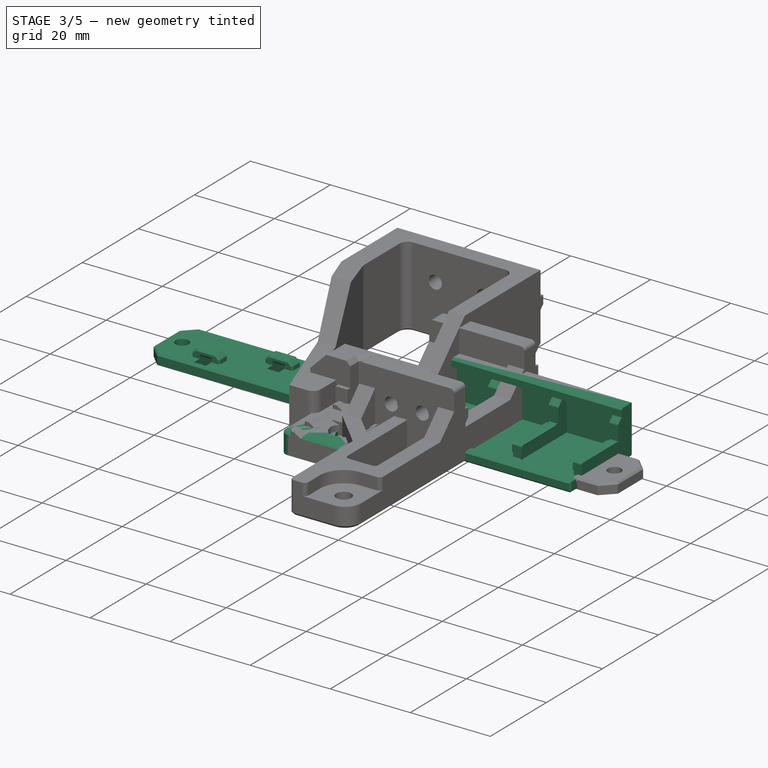
[diagram: stage 3 of 5 — iso view after this stage's code; geometry added in this stage tinted green]
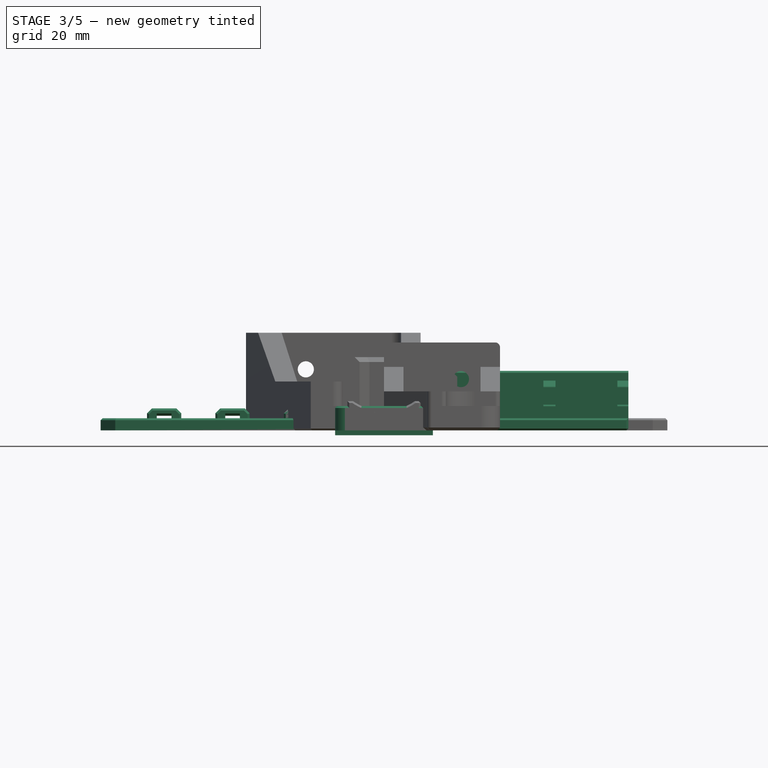
[diagram: stage 3 of 5 — front view after this stage's code; geometry added in this stage tinted green]
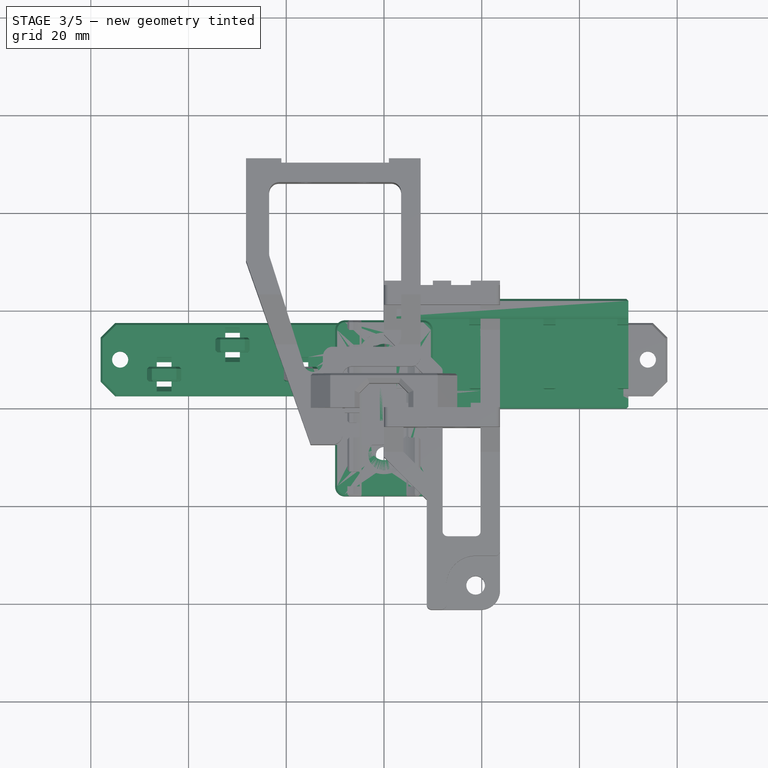
[diagram: stage 3 of 5 — top view after this stage's code; geometry added in this stage tinted green]
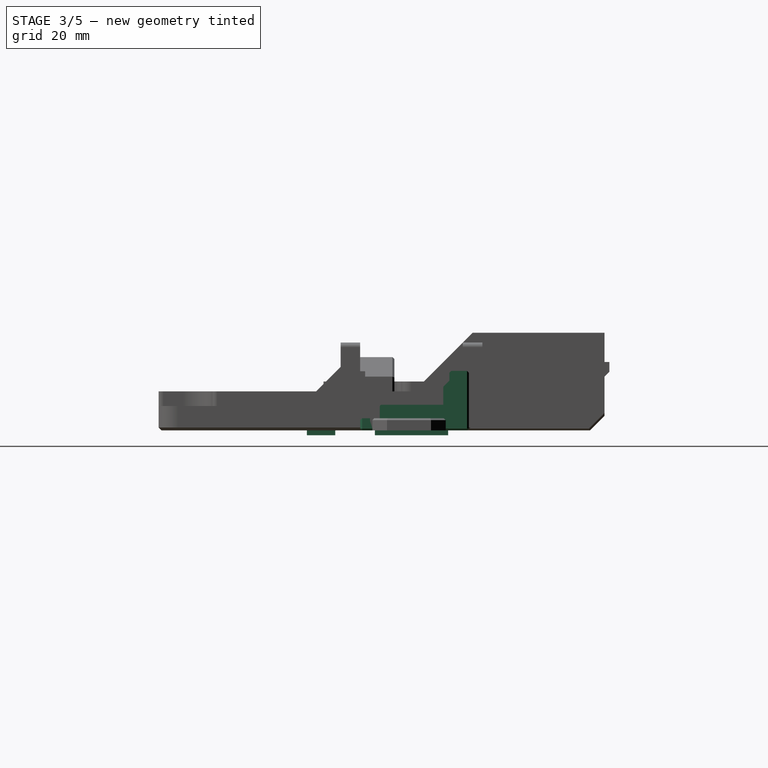
[diagram: stage 3 of 5 — right view after this stage's code; geometry added in this stage tinted green]
FEATURE [Part::Feature] Chamfer004013007011015006009007001004
  Placement = pos=(-10,-18,5) rot=(0.707107,0.707107,0;3.14159rad)
  shape: bbox 20 x 36 x 6 mm, 35 faces (baked)
FEATURE [Part::Box] Box012  label="Cube012"
  AttacherType = Attacher::AttachEngine3D
  Height = 2.5
  Length = 14
  Placement = pos=(-7,-1.5,1) rot=(0,0,1;0rad)
  Width = 3
FEATURE [Part::Box] Box013  label="Cube013"
  AttacherType = Attacher::AttachEngine3D
  Height = 9.5
  Length = 2
  Placement = pos=(-7,-1.5,1) rot=(0,0,1;0rad)
  Width = 3
FEATURE [Part::Box] Box014  label="Cube014"
  AttacherType = Attacher::AttachEngine3D
  Height = 9.5
  Length = 2
  Placement = pos=(5,-1.5,1) rot=(0,0,1;0rad)
  Width = 3
FEATURE [Part::MultiFuse] Fusion004005005
  Shapes = -> [Box013,Box012,Box014]
FEATURE [Part::Chamfer] Chamfer004013007011015006009007001005
  Base = -> Fusion004005005
  Edges = 2 edges r=1.99: [Edge4,Edge35]
FEATURE [Part::Chamfer] Chamfer004013007011015006009007001006
  Base = -> Chamfer004013007011015006009007001005
  Edges = 2 edges r=1: [Edge34,Edge35]
FEATURE [Part::Cut] Cut011
  Base = -> Chamfer004013007011015006009007001004
  Tool = -> Chamfer004013007011015006009007001006
FEATURE [Part::Box] Box015  label="Cube015"
  AttacherType = Attacher::AttachEngine3D
  Height = 2.5
  Length = 62
  Placement = pos=(-58,2.5,0) rot=(0,0,1;0rad)
  Width = 15
FEATURE [Part::Feature] Chamfer004013007011015006009007001009  label="ziptie-slot003"
  Placement = pos=(0,0,-2) rot=(0,0,1;0rad)
  shape: bbox 3 x 7 x 6.5 mm, 24 faces (baked)
FEATURE [Part::Feature] Defeatured004002  label="wago-mount001"
  shape: bbox 47.45 x 22.25 x 12.2 mm, 86 faces (baked)
FEATURE [Part::Box] Box016  label="Cube016"
  AttacherType = Attacher::AttachEngine3D
  Height = 3
  Length = 7
  Placement = pos=(-3.5,-1.5,0) rot=(0,0,1;0rad)
  Width = 3
FEATURE [Part::Chamfer] Chamfer004013007011015006009007001011  label="ziptie-lower-cut008"
  Base = -> Box016
  Edges = 2 edges r=1: [Edge4,Edge8]
FEATURE [Part::Feature] Chamfer004013007011015006009007001013  label="ziptie-lower-cut009"
  Placement = pos=(-17,7,0) rot=(0,0,-1;1.5708rad)
  shape: bbox 3 x 7 x 3 mm, 8 faces (baked)
FEATURE [Part::Feature] Common002006  label="ziptie-slot-low008"
  Placement = pos=(-45,7,0) rot=(0,0,-1;1.5708rad)
  shape: bbox 7 x 3 x 4.5 mm, 24 faces (baked)
FEATURE [Part::Feature] Chamfer004013007011015006009007001014  label="ziptie-lower-cut010"
  Placement = pos=(-45,7,0) rot=(0,0,-1;1.5708rad)
  shape: bbox 3 x 7 x 3 mm, 8 faces (baked)
FEATURE [Part::Refine] Chamfer004013007011015006009007001016  label="ziptie-lower-cut011"
  Placement = pos=(-1,10,0) rot=(0,0,1;0rad)
  Source = -> Chamfer004013007011015006009007001011
FEATURE [Part::Cylinder] Cylinder010
  Angle = 360
  AttacherType = Attacher::AttachEngine3D
  Height = 10
  Placement = pos=(-54,10,0) rot=(0,0,1;0rad)
  Radius = 1.65
FEATURE [Part::Cylinder] Cylinder011
  Angle = 360
  AttacherType = Attacher::AttachEngine3D
  Height = 10
  Placement = pos=(-10,10,0) rot=(0,0,1;0rad)
  Radius = 1.65
FEATURE [Part::Cylinder] Cylinder012
  Angle = 360
  AttacherType = Attacher::AttachEngine3D
  Height = 10
  Radius = 8
FEATURE [Part::MultiCommon] Common002005  label="ziptie-slot-low007"
  Shapes = -> [Cylinder012,Chamfer004013007011015006009007001009]
FEATURE [Part::Feature] Chamfer004013007011015006009007001017  label="ziptie-lower-cut012"
  Placement = pos=(-31,13,0) rot=(0,0,-1;1.5708rad)
  shape: bbox 3 x 7 x 3 mm, 8 faces (baked)
FEATURE [Part::Feature] Common002008  label="ziptie-slot-low010"
  Placement = pos=(-31,13,0) rot=(0,0,-1;1.5708rad)
  shape: bbox 7 x 3 x 4.5 mm, 24 faces (baked)
FEATURE [Part::Chamfer] Chamfer004013007011015006009007001018
  Base = -> Defeatured004002
  Edges = 11 edges r=0.4: [Edge32,Edge33,Edge43,Edge44,Edge45,Edge57,Edge127,Edge128,Edge129,Edge136,Edge142]
FEATURE [Part::Feature] Common002009  label="ziptie-slot-low011"
  Placement = pos=(-17,7,0) rot=(0,0,-1;1.5708rad)
  shape: bbox 7 x 3 x 4.5 mm, 24 faces (baked)
FEATURE [Part::MultiFuse] Fusion004005007
  Shapes = -> [Common002006,Common002008,Common002009]
FEATURE [Part::MultiFuse] Fusion004005008
  Shapes = -> [Common002007,Fusion004005007]
FEATURE [Part::MultiFuse] Fusion004005009
  Shapes = -> [Chamfer004013007011015006009007001014,Chamfer004013007011015006009007001017,Chamfer004013007011015006009007001013,Chamfer004013007011015006009007001016]
FEATURE [Part::MultiFuse] Fusion004005010
  Shapes = -> [Box015,Fusion004005008]
FEATURE [Part::Cut] Cut012
  Base = -> Fusion004005010
  Tool = -> Fusion004005009
FEATURE [Part::MultiFuse] Fusion004005011
  Shapes = -> [Cylinder010,Cylinder011]
FEATURE [Part::Cut] Cut013
  Base = -> Cut012
  Tool = -> Fusion004005011
FEATURE [Part::Chamfer] Chamfer004013007011015006009007001019
  Base = -> Cut013
  Edges = 2 edges r=3: [Edge1,Edge3]
FEATURE [Part::Chamfer] Chamfer004013007011015006009007001021
  Base = -> Chamfer004013007011015006009007001019
  Edges = 5 edges r=0.4: [Edge1,Edge5,Edge6,Edge8,Edge9]
FEATURE [Part::Chamfer] Chamfer004013007011015006009007001022
  Base = -> Chamfer004013007011015006009007001020
  Edges = 5 edges r=0.4: [Edge3,Edge11,Edge15,Edge16,Edge17]
FEATURE [Part::MultiFuse] Fusion004005012  label="1515-connector-mounter"
  Shapes = -> [Chamfer004013007011015006009007001021,Chamfer004013007011015006009007001018,Chamfer004013007011015006009007001022]
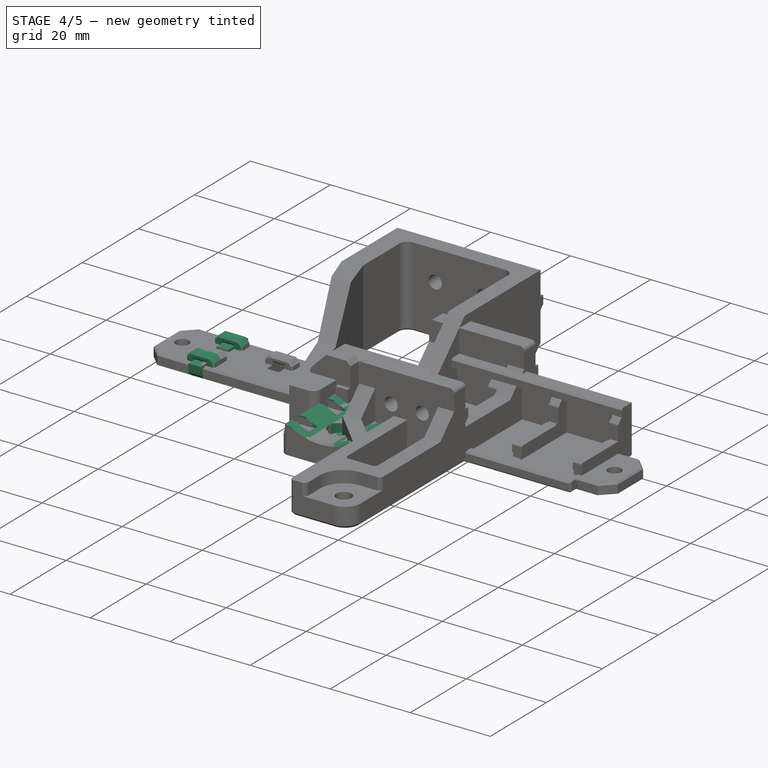
[diagram: stage 4 of 5 — iso view after this stage's code; geometry added in this stage tinted green]
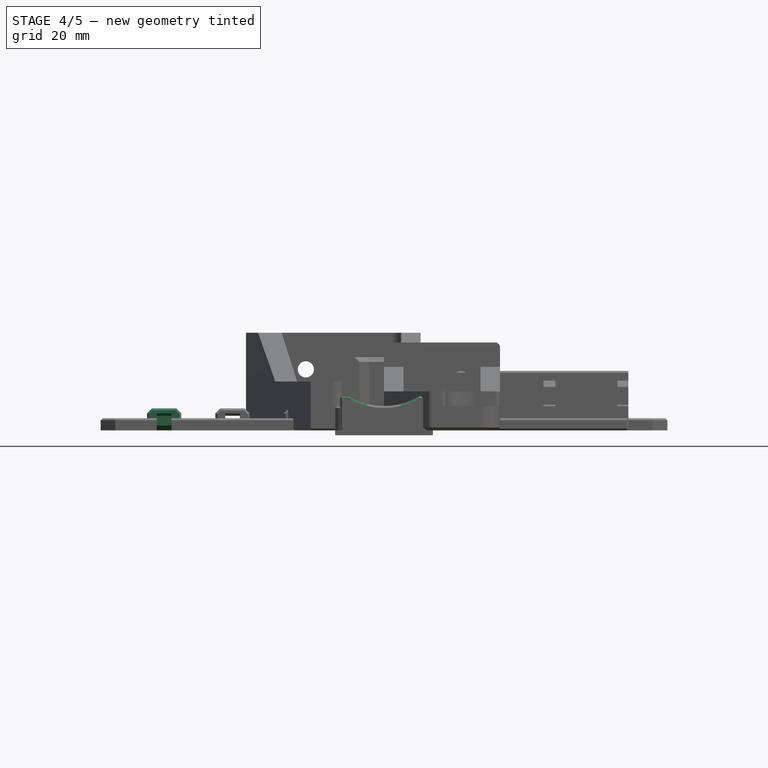
[diagram: stage 4 of 5 — front view after this stage's code; geometry added in this stage tinted green]
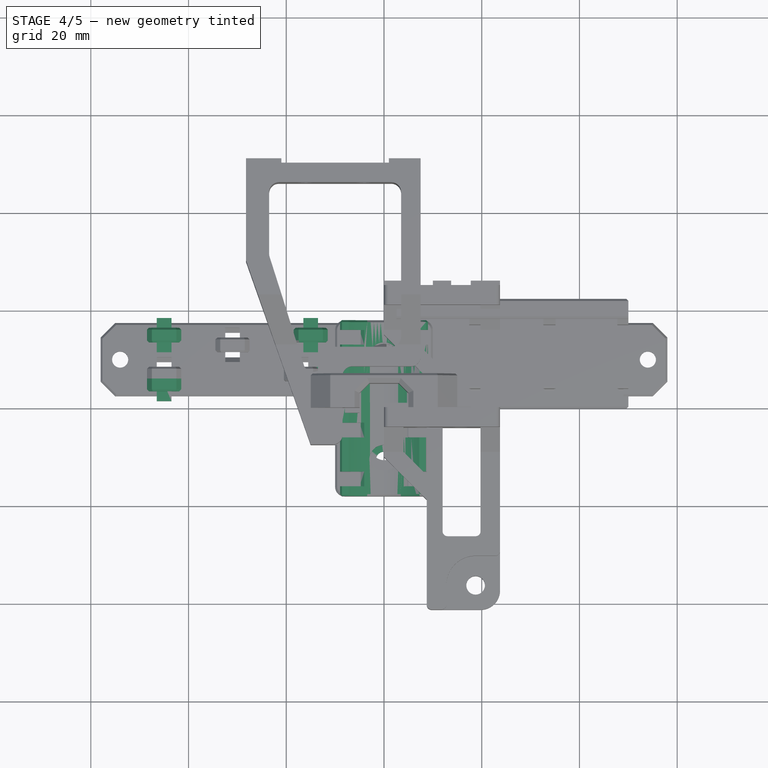
[diagram: stage 4 of 5 — top view after this stage's code; geometry added in this stage tinted green]
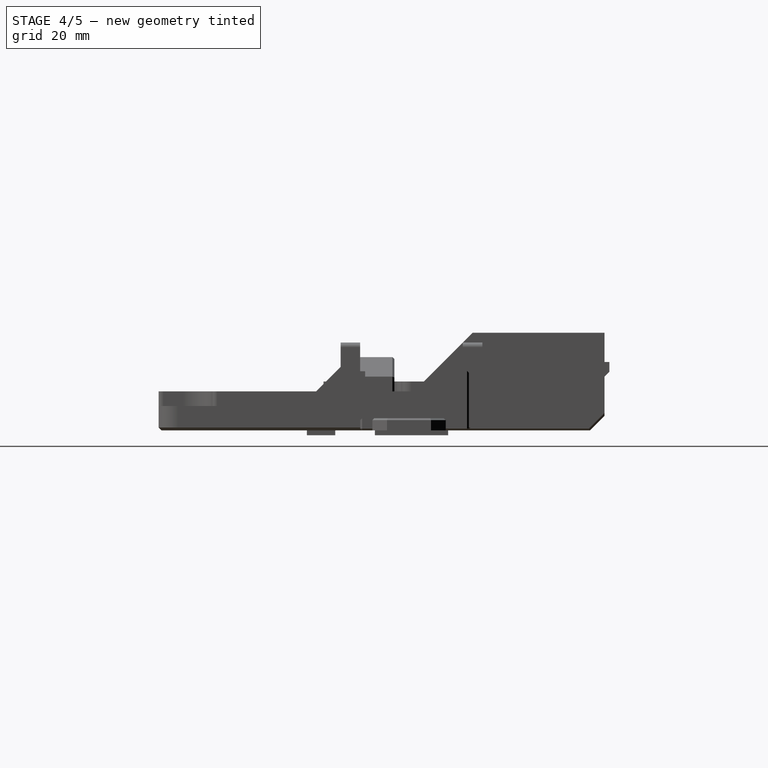
[diagram: stage 4 of 5 — right view after this stage's code; geometry added in this stage tinted green]
FEATURE [Part::Refine] Chamfer007003002  label="ziptie-lower-cut002"
  Placement = pos=(-10,10,0) rot=(0,0,-1;1.5708rad)
  Source = -> Chamfer007003
FEATURE [Part::Refine] Common002  label="ziptie-slot-low002"
  Placement = pos=(-10,10,0) rot=(0,0,-1;1.5708rad)
  Source = -> Common
FEATURE [Part::Cylinder] Cylinder003
  Angle = 360
  AttacherType = Attacher::AttachEngine3D
  Height = 10
  Placement = pos=(-10,10,0) rot=(0,0,1;0rad)
  Radius = 1.65
FEATURE [Part::Feature] Common002002  label="ziptie-slot-low004"
  Placement = pos=(-15,5,0) rot=(0,0,-1;1.5708rad)
  shape: bbox 7 x 3 x 4.5 mm, 24 faces (baked)
FEATURE [Part::Feature] Chamfer007003002002  label="ziptie-lower-cut004"
  Placement = pos=(-15,5,0) rot=(0,0,-1;1.5708rad)
  shape: bbox 3 x 7 x 3 mm, 8 faces (baked)
FEATURE [Part::Feature] Common002003  label="ziptie-slot-low005"
  Placement = pos=(-45,5,0) rot=(0,0,-1;1.5708rad)
  shape: bbox 7 x 3 x 4.5 mm, 24 faces (baked)
FEATURE [Part::Feature] Chamfer007003002003  label="ziptie-lower-cut005"
  Placement = pos=(-45,5,0) rot=(0,0,-1;1.5708rad)
  shape: bbox 3 x 7 x 3 mm, 8 faces (baked)
FEATURE [Part::Feature] Common002004  label="ziptie-slot-low006"
  Placement = pos=(-45,15,0) rot=(0,0,-1;1.5708rad)
  shape: bbox 7 x 3 x 4.5 mm, 24 faces (baked)
FEATURE [Part::Feature] Chamfer007003002004  label="ziptie-lower-cut006"
  Placement = pos=(-45,15,0) rot=(0,0,-1;1.5708rad)
  shape: bbox 3 x 7 x 3 mm, 8 faces (baked)
FEATURE [Part::MultiFuse] Fusion001
  Shapes = -> [Chamfer007003002004,Chamfer007003002003,Chamfer007003002002,Chamfer007003002001]
FEATURE [Part::MultiFuse] Fusion002
  Shapes = -> [Common002001,Common002002,Common002003,Common002004]
FEATURE [Part::Feature] Part__Mirroring001  label="Fusion004001 (Mirror #1)001"
  shape: bbox 116 x 22.25 x 12.2 mm, 268 faces (baked)
FEATURE [Part::Box] Box005  label="Cube005"
  AttacherType = Attacher::AttachEngine3D
  Height = 7
  Length = 18
  Placement = pos=(-9,0,0) rot=(0,0,1;0rad)
  Width = 36
FEATURE [Part::Cylinder] Cylinder004
  Angle = 360
  AttacherType = Attacher::AttachEngine3D
  Height = 36
  Placement = pos=(0,4e-15,19) rot=(-1,0,0;1.5708rad)
  Radius = 14
FEATURE [Part::Cylinder] Cylinder005
  Angle = 360
  AttacherType = Attacher::AttachEngine3D
  Height = 5
  Placement = pos=(0,28.5,0) rot=(0,0,1;0rad)
  Radius = 3
FEATURE [Part::Cylinder] Cylinder006
  Angle = 360
  AttacherType = Attacher::AttachEngine3D
  Height = 5
  Placement = pos=(0,7.5,0) rot=(0,0,1;0rad)
  Radius = 3
FEATURE [Part::Cut] Cut006
  Base = -> Box005
  Tool = -> Cylinder004
FEATURE [Part::Cylinder] Cylinder007
  Angle = 360
  AttacherType = Attacher::AttachEngine3D
  Height = 10
  Placement = pos=(0,7.5,0) rot=(0,0,1;0rad)
  Radius = 1.65
FEATURE [Part::Cylinder] Cylinder008
  Angle = 360
  AttacherType = Attacher::AttachEngine3D
  Height = 10
  Placement = pos=(0,28.5,0) rot=(0,0,1;0rad)
  Radius = 1.65
FEATURE [Part::MultiFuse] Fusion004002
  Shapes = -> [Cylinder007,Cylinder008]
FEATURE [Part::Cut] Cut007
  Base = -> Cut006
  Tool = -> Fusion004002
FEATURE [Part::MultiFuse] Fusion004003
  Placement = pos=(0,0,3) rot=(0,0,1;0rad)
  Shapes = -> [Cylinder006,Cylinder005]
FEATURE [Part::Cut] Cut008
  Base = -> Cut007
  Tool = -> Fusion004003
FEATURE [Part::Chamfer] Chamfer007003002005
  Base = -> Cut008
  Edges = 16 edges r=0.4: [Edge1,Edge2,Edge3,Edge4,Edge5,Edge6,Edge7,Edge8,Edge9,Edge10,Edge12,Edge13,Edge14,Edge15,Edge16,Edge19]
FEATURE [Part::Box] Box006  label="Cube006"
  AttacherType = Attacher::AttachEngine3D
  Height = 2
  Length = 20
  Placement = pos=(-10,2,0) rot=(0,0,1;0rad)
  Width = 3
FEATURE [Part::Box] Box007  label="Cube007"
  AttacherType = Attacher::AttachEngine3D
  Height = 2
  Length = 20
  Placement = pos=(-10,31,0) rot=(0,0,1;0rad)
  Width = 3
FEATURE [Part::Box] Box008  label="Cube008"
  AttacherType = Attacher::AttachEngine3D
  Height = 2
  Length = 20
  Placement = pos=(-10,22,0) rot=(0,0,1;0rad)
  Width = 3
FEATURE [Part::Box] Box009  label="Cube009"
  AttacherType = Attacher::AttachEngine3D
  Height = 2
  Length = 20
  Placement = pos=(-10,12,0) rot=(0,0,1;0rad)
  Width = 3
FEATURE [Part::MultiFuse] Fusion004004
  Shapes = -> [Box009,Box006,Box007,Box008]
FEATURE [Part::Cut] Cut009
  Base = -> Chamfer007003002005
  Tool = -> Fusion004004
FEATURE [Part::Box] Box010  label="Cube010"
  AttacherType = Attacher::AttachEngine3D
  Height = 10
  Length = 5
  Placement = pos=(-10,2,0) rot=(0,0,1;0rad)
  Width = 3
FEATURE [Part::Box] Box011  label="Cube011"
  AttacherType = Attacher::AttachEngine3D
  Height = 10
  Length = 5
  Placement = pos=(5,2,0) rot=(0,0,1;0rad)
  Width = 3
FEATURE [Part::MultiFuse] Fusion004005
  Shapes = -> [Box011,Box010]
FEATURE [Part::Feature] Fusion004005001
  Placement = pos=(0,10,0) rot=(0,0,1;0rad)
  shape: bbox 20 x 3 x 10 mm, 12 faces, 2 solids (baked)
FEATURE [Part::Feature] Fusion004005002
  Placement = pos=(0,20,0) rot=(0,0,1;0rad)
  shape: bbox 20 x 3 x 10 mm, 12 faces, 2 solids (baked)
FEATURE [Part::Feature] Fusion004005003
  Placement = pos=(0,29,0) rot=(0,0,1;0rad)
  shape: bbox 20 x 3 x 10 mm, 12 faces, 2 solids (baked)
FEATURE [Part::MultiFuse] Fusion004005004
  Shapes = -> [Fusion004005003,Fusion004005,Fusion004005001,Fusion004005002]
FEATURE [Part::Cut] Cut010
  Base = -> Cut009
  Tool = -> Fusion004005004
FEATURE [Part::Chamfer] Chamfer007003002006
  Base = -> Cut010
  Edges = 16 edges r=1: [Edge30,Edge32,Edge35,Edge39,Edge43,Edge47,Edge53,Edge57,Edge61,Edge87,Edge106,Edge118,Edge130,Edge148,Edge160,Edge172]
  Placement = pos=(0,-18,0) rot=(0,0,1;0rad)
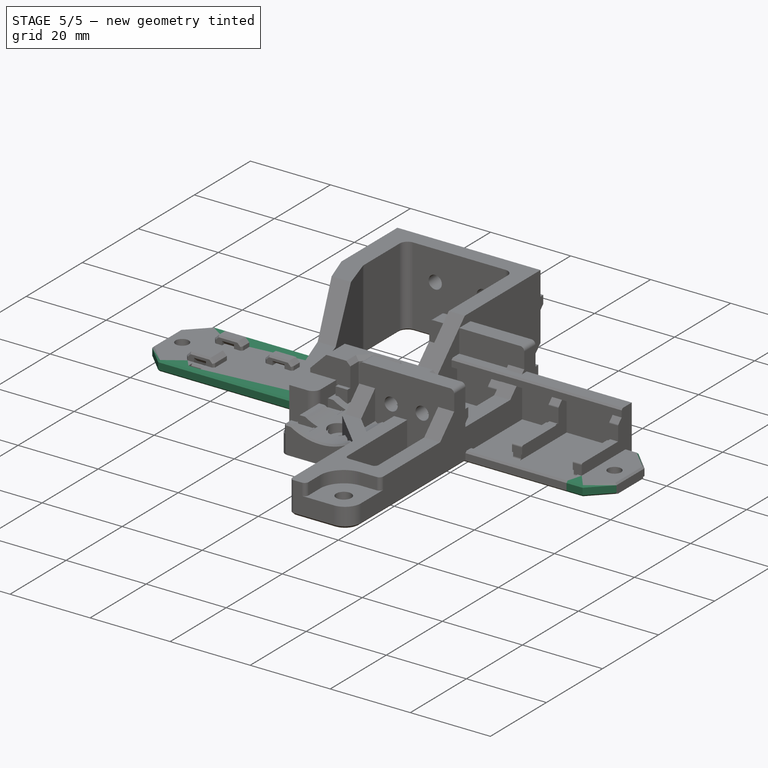
[diagram: stage 5 of 5 — iso view after this stage's code; geometry added in this stage tinted green]
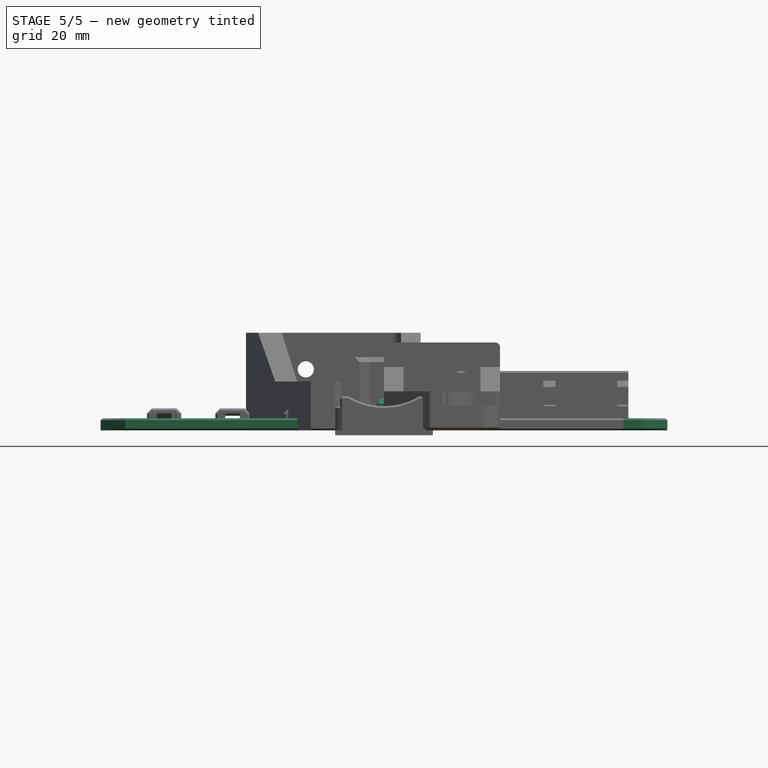
[diagram: stage 5 of 5 — front view after this stage's code; geometry added in this stage tinted green]
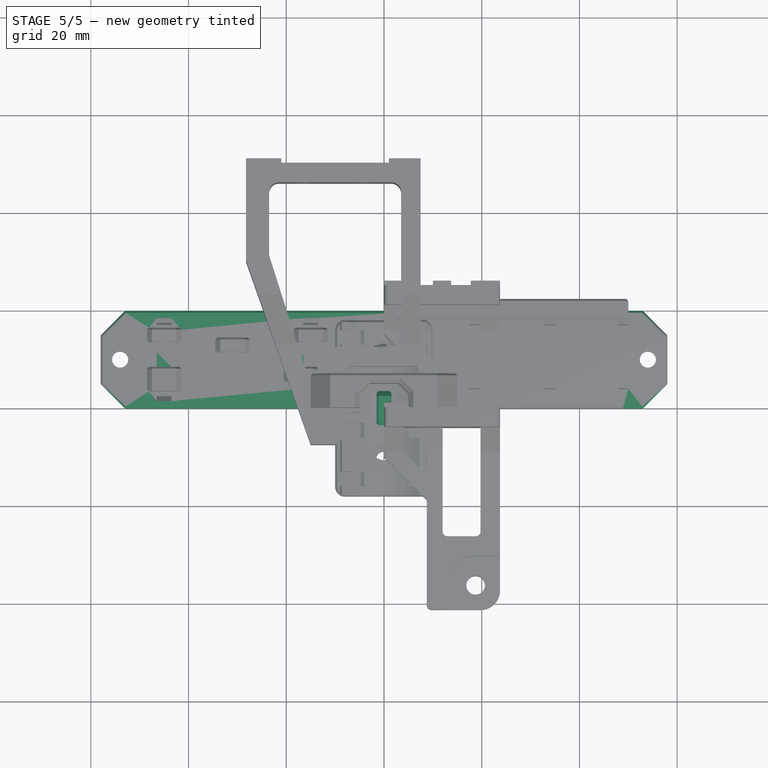
[diagram: stage 5 of 5 — top view after this stage's code; geometry added in this stage tinted green]
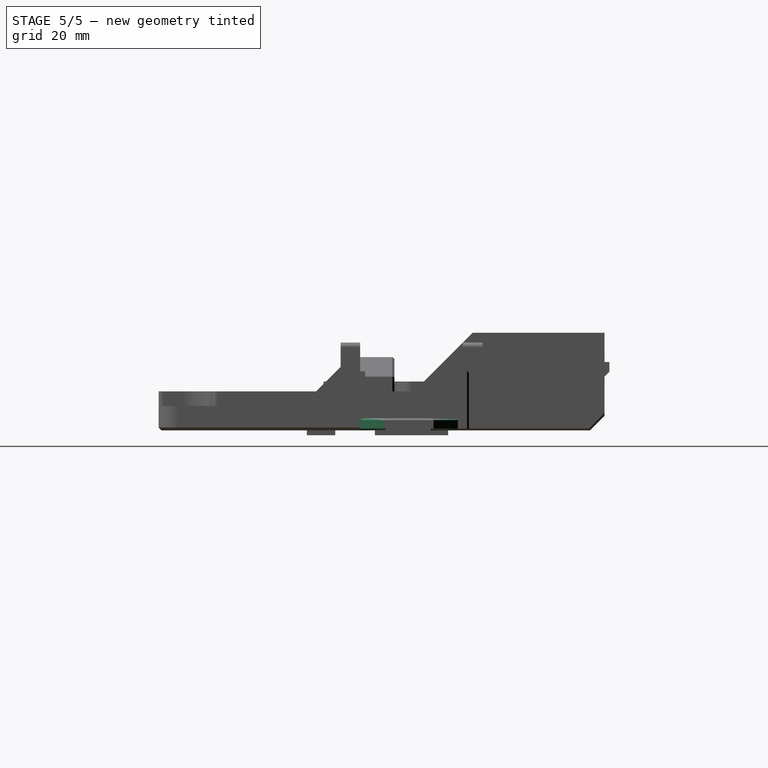
[diagram: stage 5 of 5 — right view after this stage's code; geometry added in this stage tinted green]
FEATURE [Part::Box] Box001  label="Cube001"
  AttacherType = Attacher::AttachEngine3D
  Height = 2.5
  Length = 9
  Placement = pos=(49,0,0) rot=(0,0,1;0rad)
  Width = 20
FEATURE [Part::Feature] Defeatured004001  label="wago-mount"
  shape: bbox 47.45 x 22.25 x 12.2 mm, 86 faces (baked)
FEATURE [Part::Cylinder] Cylinder
  Angle = 360
  AttacherType = Attacher::AttachEngine3D
  Height = 10
  Placement = pos=(54,10,0) rot=(0,0,1;0rad)
  Radius = 1.65
FEATURE [Part::Chamfer] Chamfer
  Base = -> Defeatured004001
  Edges = 11 edges r=0.4: [Edge32,Edge33,Edge43,Edge44,Edge45,Edge57,Edge127,Edge128,Edge129,Edge136,Edge142]
FEATURE [Part::Chamfer] Chamfer001
  Base = -> Box001
  Edges = 2 edges r=5: [Edge5,Edge7]
FEATURE [Part::Chamfer] Chamfer002
  Base = -> Chamfer001
  Edges = 10 edges r=0.4: [Edge1,Edge3,Edge5,Edge7,Edge8,Edge9,Edge10,Edge12,Edge14,Edge16]
FEATURE [Part::Cut] Cut
  Base = -> Chamfer002
  Tool = -> Cylinder
FEATURE [Part::Box] Box  label="Cube"
  AttacherType = Attacher::AttachEngine3D
  Height = 2.5
  Length = 62
  Placement = pos=(-58,0,0) rot=(0,0,1;0rad)
  Width = 20
FEATURE [Part::Chamfer] Chamfer003
  Base = -> Box
  Edges = 2 edges r=5: [Edge1,Edge3]
FEATURE [Part::Chamfer] Chamfer004
  Base = -> Chamfer003
  Edges = 10 edges r=0.4: [Edge1,Edge3,Edge5,Edge6,Edge8,Edge9,Edge10,Edge12,Edge14,Edge16]
FEATURE [Part::Cylinder] Cylinder001
  Angle = 360
  AttacherType = Attacher::AttachEngine3D
  Height = 10
  Placement = pos=(-54,10,0) rot=(0,0,1;0rad)
  Radius = 1.65
FEATURE [Part::Cut] Cut001
  Base = -> Chamfer004
  Tool = -> Cylinder001
FEATURE [Part::Box] Box002  label="Cube002"
  AttacherType = Attacher::AttachEngine3D
  Height = 6.5
  Length = 3
  Placement = pos=(-1.5,-3.5,0) rot=(0,0,1;0rad)
  Width = 7
FEATURE [Part::Box] Box003  label="Cube003"
  AttacherType = Attacher::AttachEngine3D
  Height = 4.5
  Length = 3
  Placement = pos=(-1.5,-1.5,0) rot=(0,0,1;0rad)
  Width = 3
FEATURE [Part::Cut] Cut002
  Base = -> Box002
  Tool = -> Box003
FEATURE [Part::Chamfer] Chamfer005
  Base = -> Cut002
  Edges = 2 edges r=1: [Edge9,Edge11]
FEATURE [Part::Chamfer] Chamfer006
  Base = -> Chamfer005
  Edges = 2 edges r=1: [Edge6,Edge30]
FEATURE [Part::Chamfer] Chamfer007  label="ziptie-slot"
  Base = -> Chamfer006
  Edges = 10 edges r=0.4: [Edge6,Edge7,Edge8,Edge9,Edge10,Edge28,Edge31,Edge34,Edge36,Edge38]
FEATURE [Part::Refine] Chamfer007001  label="ziptie-slot001"
  Placement = pos=(-4,10,0) rot=(0,0,1;0rad)
  Source = -> Chamfer007
FEATURE [Part::Feature] Chamfer007002  label="ziptie-slot002"
  Placement = pos=(0,0,-2) rot=(0,0,1;0rad)
  shape: bbox 3 x 7 x 6.5 mm, 24 faces (baked)
FEATURE [Part::Cylinder] Cylinder002
  Angle = 360
  AttacherType = Attacher::AttachEngine3D
  Height = 10
  Radius = 8
FEATURE [Part::MultiCommon] Common  label="ziptie-slot-low"
  Shapes = -> [Cylinder002,Chamfer007002]
FEATURE [Part::Box] Box004  label="Cube004"
  AttacherType = Attacher::AttachEngine3D
  Height = 3
  Length = 7
  Placement = pos=(-3.5,-1.5,0) rot=(0,0,1;0rad)
  Width = 3
FEATURE [Part::Chamfer] Chamfer007003  label="ziptie-lower-cut"
  Base = -> Box004
  Edges = 2 edges r=1: [Edge4,Edge8]
FEATURE [Part::Refine] Chamfer007003001  label="ziptie-lower-cut001"
  Placement = pos=(-1,10,0) rot=(0,0,1;0rad)
  Source = -> Chamfer007003
FEATURE [Part::Refine] Common001  label="ziptie-slot-low001"
  Placement = pos=(-1,10,0) rot=(0,0,1;0rad)
  Source = -> Common
FEATURE [Part::Cut] Cut003
  Base = -> Cut001
  Tool = -> Chamfer007003001
FEATURE [Part::MultiFuse] Fusion
  Shapes = -> [Common001,Cut003]
FEATURE [Part::Feature] Chamfer007003002001  label="ziptie-lower-cut003"
  Placement = pos=(-15,15,0) rot=(0,0,-1;1.5708rad)
  shape: bbox 3 x 7 x 3 mm, 8 faces (baked)
FEATURE [Part::Feature] Common002001  label="ziptie-slot-low003"
  Placement = pos=(-15,15,0) rot=(0,0,-1;1.5708rad)
  shape: bbox 7 x 3 x 4.5 mm, 24 faces (baked)
FEATURE [Part::Cut] Cut004
  Base = -> Fusion
  Tool = -> Cylinder003
FEATURE [Part::Cut] Cut005
  Base = -> Cut004
  Tool = -> Fusion001
FEATURE [Part::MultiFuse] Fusion003
  Shapes = -> [Cut005,Fusion002]
FEATURE [Part::MultiFuse] Fusion004
  Shapes = -> [Chamfer,Cut,Fusion003]
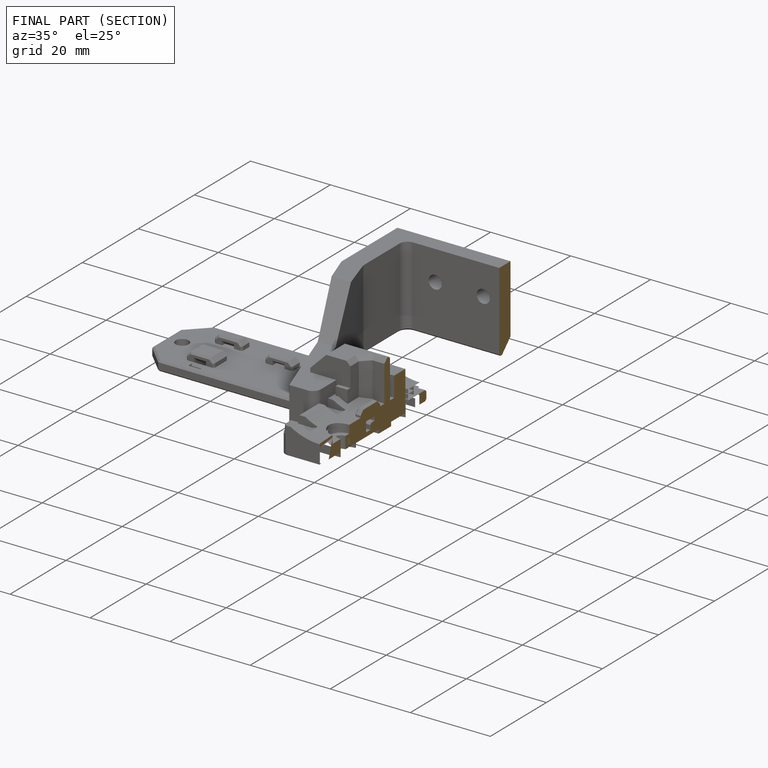
[diagram: finished part — half-section view (interior)]
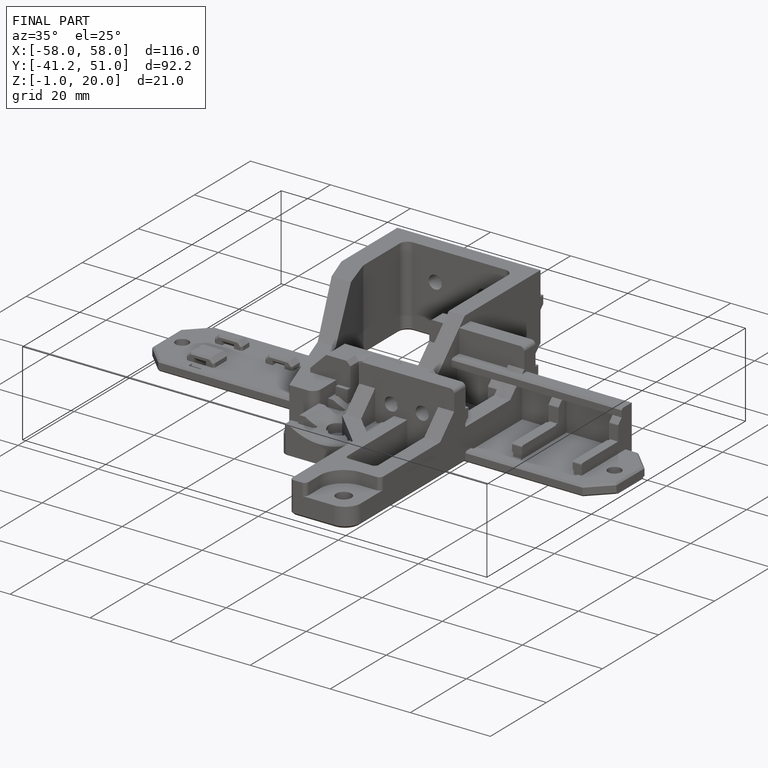
[diagram: finished part — iso view with bounding-box wireframe]
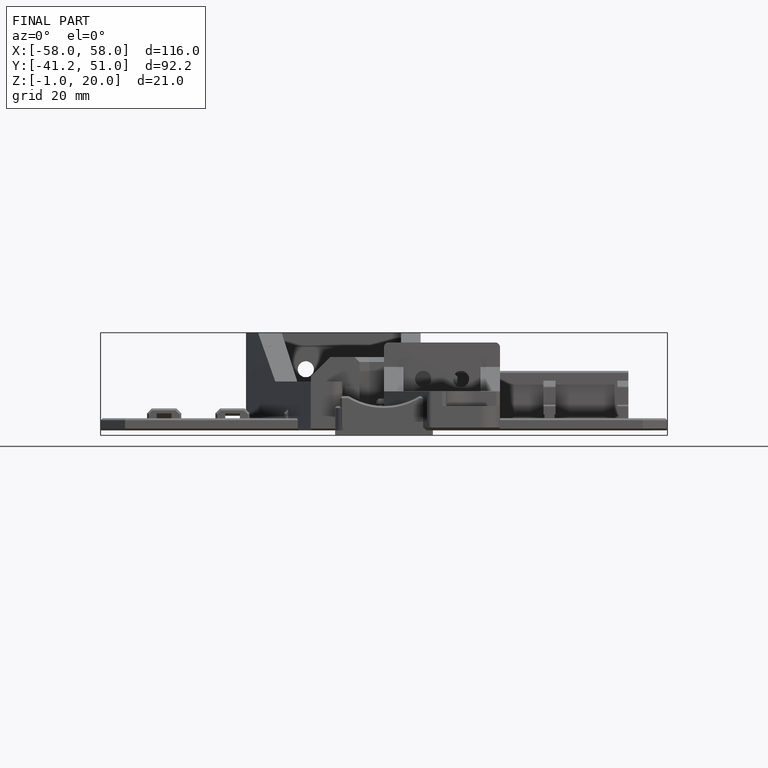
[diagram: finished part — front view with bounding-box wireframe]
